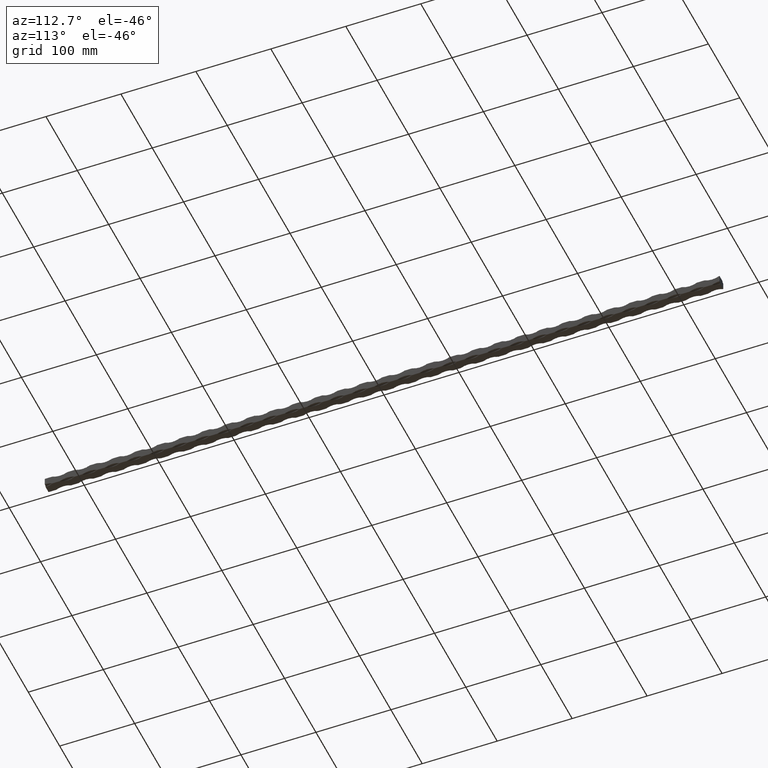
[diagram: clean part render]
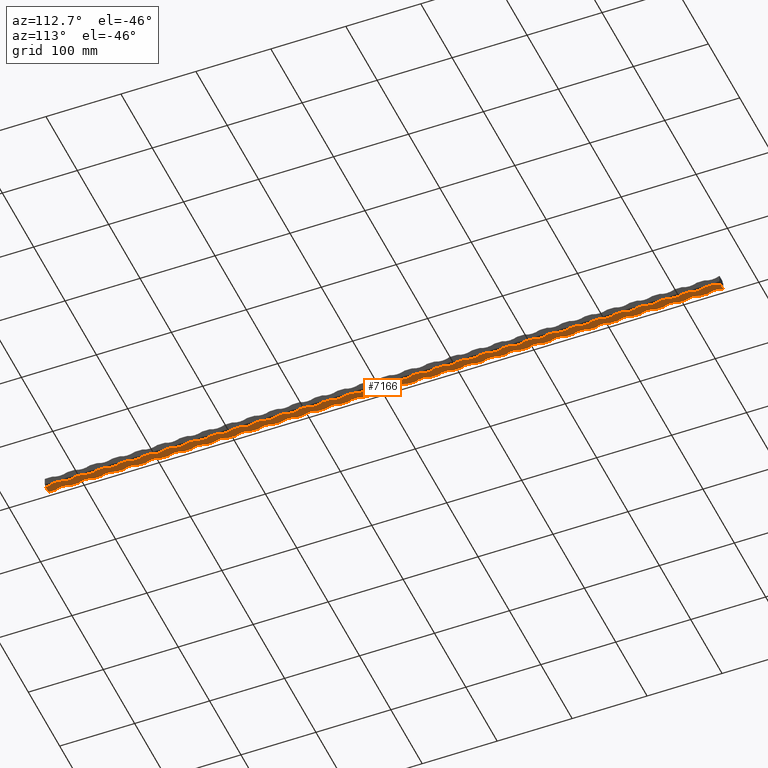
[diagram: same view with one face highlighted and labeled with its STEP entity id]
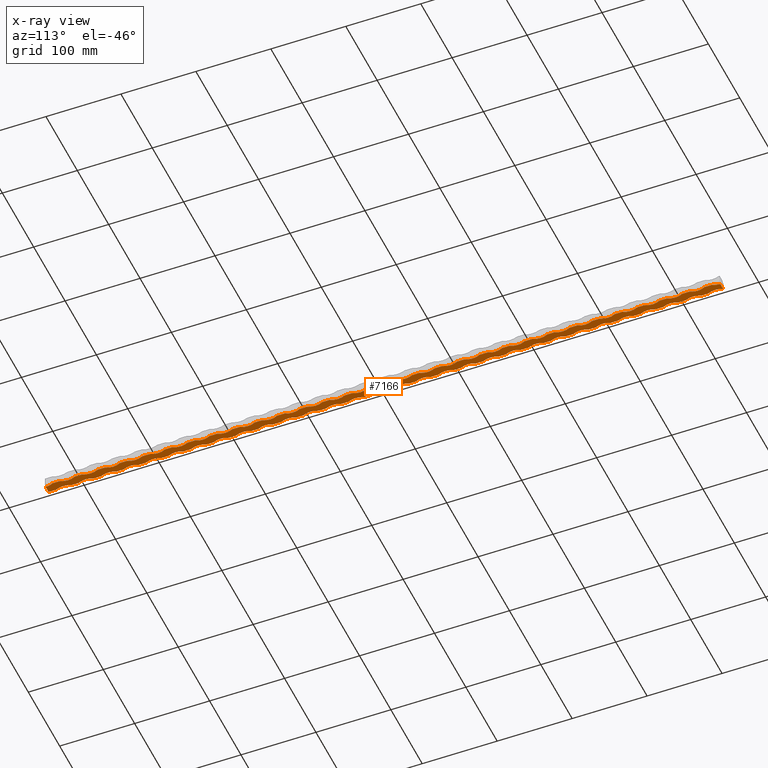
[diagram: x-ray of the same camera — body ghosted, the highlighted face saturated]
A machine part, auxiliary view. The second image highlights one B-rep face of the part: STEP entity #7166.
The next image is the same camera in x-ray: the body ghosted, the highlighted face saturated — about 0% of this face is hidden behind the body in this view.
In plain terms, the highlighted planar face has unit normal (0, 0, 1).
Its self-contained STEP definition (entity closure, byte-faithful):
#9 = VERTEX_POINT ( 'NONE', #8954 ) ;
#32 = DIRECTION ( 'NONE',  ( -1.000000000000000000, 0.000000000000000000, 8.163404592832024105E-17 ) ) ;
#34 = VERTEX_POINT ( 'NONE', #12454 ) ;
#37 = ORIENTED_EDGE ( 'NONE', *, *, #9133, .F. ) ;
#71 = DIRECTION ( 'NONE',  ( -1.000000000000000000, 0.000000000000000000, 8.163404592832022872E-17 ) ) ;
#74 = VERTEX_POINT ( 'NONE', #5712 ) ;
#76 = EDGE_CURVE ( 'NONE', #1450, #2434, #5172, .T. ) ;
#103 = EDGE_CURVE ( 'NONE', #6562, #3145, #3738, .T. ) ;
#108 = EDGE_CURVE ( 'NONE', #6798, #14313, #9835, .T. ) ;
#110 = DIRECTION ( 'NONE',  ( -1.000000000000000000, 3.918434204559370781E-15, 8.163404592832022872E-17 ) ) ;
#111 = CARTESIAN_POINT ( 'NONE',  ( -6.000000000000002665, 0.000000000000000000, -5.999999999999963585 ) ) ;
#122 = CIRCLE ( 'NONE', #10538, 21.25000000000002842 ) ;
#123 = DIRECTION ( 'NONE',  ( -0.000000000000000000, -1.000000000000000000, -0.000000000000000000 ) ) ;
#139 = DIRECTION ( 'NONE',  ( -1.000000000000000000, 0.000000000000000000, 8.163404592832024105E-17 ) ) ;
#155 = DIRECTION ( 'NONE',  ( -0.000000000000000000, -1.000000000000000000, -0.000000000000000000 ) ) ;
#158 = DIRECTION ( 'NONE',  ( 7.748431526029736712E-17, 0.000000000000000000, 1.000000000000000000 ) ) ;
#181 = VECTOR ( 'NONE', #155, 1000.000000000000000 ) ;
#228 = VERTEX_POINT ( 'NONE', #3615 ) ;
#234 = AXIS2_PLACEMENT_3D ( 'NONE', #11602, #3825, #8210 ) ;
#243 = ORIENTED_EDGE ( 'NONE', *, *, #7763, .T. ) ;
#244 = LINE ( 'NONE', #11941, #599 ) ;
#249 = DIRECTION ( 'NONE',  ( -0.000000000000000000, -1.000000000000000000, -0.000000000000000000 ) ) ;
#288 = CARTESIAN_POINT ( 'NONE',  ( -6.000000000000002665, 360.0000000000000568, -5.999999999999932498 ) ) ;
#364 = EDGE_CURVE ( 'NONE', #6249, #7019, #6708, .T. ) ;
#384 = CARTESIAN_POINT ( 'NONE',  ( -24.75000000000002487, 110.0000000000000426, -5.999999999999949374 ) ) ;
#391 = VERTEX_POINT ( 'NONE', #13851 ) ;
#400 = CARTESIAN_POINT ( 'NONE',  ( -24.75000000000002487, 259.9999999999999432, -5.999999999999936051 ) ) ;
#426 = CARTESIAN_POINT ( 'NONE',  ( 5.999999999999999112, 450.0000000000000000, -5.999999999999999112 ) ) ;
#428 = VERTEX_POINT ( 'NONE', #11579 ) ;
#436 = VECTOR ( 'NONE', #4771, 1000.000000000000000 ) ;
#461 = DIRECTION ( 'NONE',  ( -0.000000000000000000, -1.000000000000000000, -0.000000000000000000 ) ) ;
#468 = VERTEX_POINT ( 'NONE', #10610 ) ;
#472 = VERTEX_POINT ( 'NONE', #8453 ) ;
#494 = AXIS2_PLACEMENT_3D ( 'NONE', #14240, #834, #1961 ) ;
#519 = LINE ( 'NONE', #11601, #2084 ) ;
#546 = DIRECTION ( 'NONE',  ( -1.000000000000000000, 2.612289469706247319E-15, 8.163404592832022872E-17 ) ) ;
#551 = CIRCLE ( 'NONE', #6456, 21.25000000000002487 ) ;
#556 = DIRECTION ( 'NONE',  ( -1.000000000000000000, 0.000000000000000000, 8.163404592832024105E-17 ) ) ;
#582 = EDGE_CURVE ( 'NONE', #14335, #11080, #13308, .T. ) ;
#598 = CARTESIAN_POINT ( 'NONE',  ( -6.000000000000000888, 450.0000000000000000, -5.999999999999999112 ) ) ;
#599 = VECTOR ( 'NONE', #14063, 1000.000000000000000 ) ;
#601 = AXIS2_PLACEMENT_3D ( 'NONE', #400, #4795, #12514 ) ;
#603 = LINE ( 'NONE', #8276, #436 ) ;
#622 = AXIS2_PLACEMENT_3D ( 'NONE', #7626, #6568, #943 ) ;
#641 = DIRECTION ( 'NONE',  ( -1.000000000000000000, 5.224578939412494638E-15, 8.163404592832022872E-17 ) ) ;
#653 = EDGE_CURVE ( 'NONE', #9748, #9834, #14181, .T. ) ;
#657 = CARTESIAN_POINT ( 'NONE',  ( -6.000000000000002665, 69.99999999999992895, -5.999999999999998224 ) ) ;
#660 = AXIS2_PLACEMENT_3D ( 'NONE', #2342, #12557, #2392 ) ;
#687 = DIRECTION ( 'NONE',  ( -0.000000000000000000, -1.000000000000000000, -0.000000000000000000 ) ) ;
#691 = CARTESIAN_POINT ( 'NONE',  ( -6.000000000000002665, -329.9999999999999432, -5.999999999999992006 ) ) ;
#706 = DIRECTION ( 'NONE',  ( -0.000000000000000000, -1.000000000000000000, -0.000000000000000000 ) ) ;
#720 = LINE ( 'NONE', #3856, #3859 ) ;
#728 = EDGE_CURVE ( 'NONE', #11430, #7336, #244, .T. ) ;
#744 = VERTEX_POINT ( 'NONE', #805 ) ;
#753 = EDGE_CURVE ( 'NONE', #8941, #9520, #5322, .T. ) ;
#759 = ORIENTED_EDGE ( 'NONE', *, *, #8510, .T. ) ;
#805 = CARTESIAN_POINT ( 'NONE',  ( 5.999999999999998224, 410.0000000000000000, -6.000000000000000000 ) ) ;
#829 = DIRECTION ( 'NONE',  ( -0.000000000000000000, -1.000000000000000000, -0.000000000000000000 ) ) ;
#834 = DIRECTION ( 'NONE',  ( 7.748431526029736712E-17, 0.000000000000000000, 1.000000000000000000 ) ) ;
#844 = AXIS2_PLACEMENT_3D ( 'NONE', #3741, #5035, #4831 ) ;
#853 = CARTESIAN_POINT ( 'NONE',  ( -24.75000000000002487, -310.0000000000000000, -5.999999999999985789 ) ) ;
#855 = CARTESIAN_POINT ( 'NONE',  ( 5.999999999999999112, -109.9999999999999858, -6.000000000000000000 ) ) ;
#859 = EDGE_CURVE ( 'NONE', #13096, #428, #4427, .T. ) ;
#862 = DIRECTION ( 'NONE',  ( 7.748431526029736712E-17, 0.000000000000000000, 1.000000000000000000 ) ) ;
#865 = CIRCLE ( 'NONE', #4497, 21.25000000000002487 ) ;
#896 = CIRCLE ( 'NONE', #13994, 21.25000000000002842 ) ;
#925 = CIRCLE ( 'NONE', #12334, 21.25000000000002842 ) ;
#938 = EDGE_CURVE ( 'NONE', #13096, #6353, #6693, .T. ) ;
#943 = DIRECTION ( 'NONE',  ( -1.000000000000000000, 0.000000000000000000, 8.163404592832024105E-17 ) ) ;
#944 = EDGE_CURVE ( 'NONE', #74, #7177, #10902, .T. ) ;
#960 = VERTEX_POINT ( 'NONE', #9157 ) ;
#968 = CARTESIAN_POINT ( 'NONE',  ( -6.000000000000002665, -320.0000000000000568, -5.999999999999998224 ) ) ;
#977 = CARTESIAN_POINT ( 'NONE',  ( 5.999999999999999112, 450.0000000000000000, -5.999999999999999112 ) ) ;
#984 = VERTEX_POINT ( 'NONE', #10450 ) ;
#1012 = EDGE_CURVE ( 'NONE', #1450, #428, #7902, .T. ) ;
#1031 = EDGE_CURVE ( 'NONE', #14209, #13171, #4089, .T. ) ;
#1037 = EDGE_CURVE ( 'NONE', #13809, #5285, #4962, .T. ) ;
#1040 = EDGE_CURVE ( 'NONE', #10382, #8957, #8789, .T. ) ;
#1079 = DIRECTION ( 'NONE',  ( -0.000000000000000000, -1.000000000000000000, -0.000000000000000000 ) ) ;
#1080 = LINE ( 'NONE', #9742, #9111 ) ;
#1082 = VERTEX_POINT ( 'NONE', #12752 ) ;
#1095 = CARTESIAN_POINT ( 'NONE',  ( -6.000000000000002665, -20.00000000000008882, -5.999999999999998224 ) ) ;
#1104 = VERTEX_POINT ( 'NONE', #11774 ) ;
#1111 = CARTESIAN_POINT ( 'NONE',  ( -6.000000000000000888, 450.0000000000000000, -5.999999999999999112 ) ) ;
#1132 = VERTEX_POINT ( 'NONE', #8389 ) ;
#1144 = CARTESIAN_POINT ( 'NONE',  ( -6.000000000000000888, 450.0000000000000000, -5.999999999999999112 ) ) ;
#1152 = CARTESIAN_POINT ( 'NONE',  ( 5.999999999999999112, 450.0000000000000000, -5.999999999999999112 ) ) ;
#1159 = CARTESIAN_POINT ( 'NONE',  ( -24.75000000000002487, -280.0000000000000000, -5.999999999999983125 ) ) ;
#1162 = DIRECTION ( 'NONE',  ( -0.000000000000000000, -1.000000000000000000, -0.000000000000000000 ) ) ;
#1166 = DIRECTION ( 'NONE',  ( -1.000000000000000000, 5.224578939412494638E-15, 8.163404592832022872E-17 ) ) ;
#1191 = CIRCLE ( 'NONE', #4854, 21.25000000000002487 ) ;
#1192 = CARTESIAN_POINT ( 'NONE',  ( 5.999999999999999112, 450.0000000000000000, -5.999999999999999112 ) ) ;
#1195 = DIRECTION ( 'NONE',  ( -0.000000000000000000, -1.000000000000000000, -0.000000000000000000 ) ) ;
#1225 = VERTEX_POINT ( 'NONE', #9648 ) ;
#1247 = CARTESIAN_POINT ( 'NONE',  ( -6.000000000000002665, 9.999999999999877431, -5.999999999999998224 ) ) ;
#1331 = AXIS2_PLACEMENT_3D ( 'NONE', #11858, #10836, #7505 ) ;
#1340 = CARTESIAN_POINT ( 'NONE',  ( 5.999999999999998224, 49.99999999999998579, -6.000000000000000000 ) ) ;
#1347 = DIRECTION ( 'NONE',  ( -1.000000000000000000, 0.000000000000000000, 8.163404592832024105E-17 ) ) ;
#1358 = CARTESIAN_POINT ( 'NONE',  ( -6.000000000000002665, 99.99999999999994316, -5.999999999999998224 ) ) ;
#1369 = DIRECTION ( 'NONE',  ( 7.748431526029736712E-17, 0.000000000000000000, 1.000000000000000000 ) ) ;
#1373 = EDGE_CURVE ( 'NONE', #6249, #11400, #14001, .T. ) ;
#1394 = VECTOR ( 'NONE', #13339, 1000.000000000000000 ) ;
#1396 = DIRECTION ( 'NONE',  ( -0.000000000000000000, -1.000000000000000000, -0.000000000000000000 ) ) ;
#1398 = EDGE_CURVE ( 'NONE', #3951, #14057, #4409, .T. ) ;
#1415 = CARTESIAN_POINT ( 'NONE',  ( 24.75000000000002487, 360.0000000000000568, -6.000000000000000888 ) ) ;
#1441 = CARTESIAN_POINT ( 'NONE',  ( 5.999999999999999112, 450.0000000000000000, -5.999999999999999112 ) ) ;
#1443 = AXIS2_PLACEMENT_3D ( 'NONE', #10393, #5816, #1347 ) ;
#1450 = VERTEX_POINT ( 'NONE', #3728 ) ;
#1459 = DIRECTION ( 'NONE',  ( 7.748431526029736712E-17, 0.000000000000000000, 1.000000000000000000 ) ) ;
#1478 = EDGE_CURVE ( 'NONE', #10502, #8957, #3339, .T. ) ;
#1500 = EDGE_CURVE ( 'NONE', #12716, #9265, #1080, .T. ) ;
#1507 = VERTEX_POINT ( 'NONE', #7315 ) ;
#1510 = AXIS2_PLACEMENT_3D ( 'NONE', #1415, #8113, #8158 ) ;
#1555 = LINE ( 'NONE', #12119, #13942 ) ;
#1573 = EDGE_CURVE ( 'NONE', #10179, #11799, #6356, .T. ) ;
#1586 = AXIS2_PLACEMENT_3D ( 'NONE', #12931, #11892, #1886 ) ;
#1594 = EDGE_CURVE ( 'NONE', #8745, #4066, #925, .T. ) ;
#1599 = CARTESIAN_POINT ( 'NONE',  ( 24.75000000000002487, 0.000000000000000000, -6.000000000000000888 ) ) ;
#1611 = ORIENTED_EDGE ( 'NONE', *, *, #11304, .T. ) ;
#1627 = DIRECTION ( 'NONE',  ( 7.748431526029736712E-17, 0.000000000000000000, 1.000000000000000000 ) ) ;
#1634 = CARTESIAN_POINT ( 'NONE',  ( 24.75000000000002487, -180.0000000000000000, -6.000000000000000888 ) ) ;
#1680 = DIRECTION ( 'NONE',  ( 7.748431526029736712E-17, 0.000000000000000000, 1.000000000000000000 ) ) ;
#1684 = VERTEX_POINT ( 'NONE', #13465 ) ;
#1707 = AXIS2_PLACEMENT_3D ( 'NONE', #10175, #8027, #4626 ) ;
#1755 = EDGE_CURVE ( 'NONE', #228, #4111, #2667, .T. ) ;
#1774 = ORIENTED_EDGE ( 'NONE', *, *, #6472, .T. ) ;
#1782 = EDGE_CURVE ( 'NONE', #5155, #7004, #2483, .T. ) ;
#1796 = ORIENTED_EDGE ( 'NONE', *, *, #11306, .T. ) ;
#1801 = DIRECTION ( 'NONE',  ( 7.748431526029736712E-17, 0.000000000000000000, 1.000000000000000000 ) ) ;
#1816 = ORIENTED_EDGE ( 'NONE', *, *, #859, .F. ) ;
#1821 = AXIS2_PLACEMENT_3D ( 'NONE', #2645, #10291, #7130 ) ;
#1858 = ORIENTED_EDGE ( 'NONE', *, *, #14370, .T. ) ;
#1886 = DIRECTION ( 'NONE',  ( -1.000000000000000000, 5.224578939412494638E-15, 8.163404592832022872E-17 ) ) ;
#1905 = DIRECTION ( 'NONE',  ( 7.748431526029736712E-17, 0.000000000000000000, 1.000000000000000000 ) ) ;
#1931 = DIRECTION ( 'NONE',  ( -1.000000000000000000, -2.612289469706247319E-15, 8.163404592832022872E-17 ) ) ;
#1936 = AXIS2_PLACEMENT_3D ( 'NONE', #853, #4144, #1931 ) ;
#1961 = DIRECTION ( 'NONE',  ( -1.000000000000000000, 2.612289469706247714E-14, 8.163404592832024105E-17 ) ) ;
#2034 = DIRECTION ( 'NONE',  ( 7.748431526029736712E-17, 0.000000000000000000, 1.000000000000000000 ) ) ;
#2035 = VECTOR ( 'NONE', #3659, 1000.000000000000000 ) ;
#2057 = LINE ( 'NONE', #1111, #13019 ) ;
#2065 = CARTESIAN_POINT ( 'NONE',  ( 5.999999999999998224, 200.0000000000000000, -6.000000000000000000 ) ) ;
#2071 = DIRECTION ( 'NONE',  ( -0.000000000000000000, -1.000000000000000000, -0.000000000000000000 ) ) ;
#2083 = AXIS2_PLACEMENT_3D ( 'NONE', #13567, #5924, #2550 ) ;
#2084 = VECTOR ( 'NONE', #14008, 1000.000000000000000 ) ;
#2097 = ORIENTED_EDGE ( 'NONE', *, *, #13211, .T. ) ;
#2111 = CARTESIAN_POINT ( 'NONE',  ( 5.999999999999999112, -139.9999999999999716, -6.000000000000000000 ) ) ;
#2113 = CARTESIAN_POINT ( 'NONE',  ( -24.75000000000002487, -10.00000000000000888, -5.999999999999959144 ) ) ;
#2114 = CARTESIAN_POINT ( 'NONE',  ( -24.75000000000002487, -190.0000000000000000, -5.999999999999975131 ) ) ;
#2135 = LINE ( 'NONE', #426, #4752 ) ;
#2159 = CARTESIAN_POINT ( 'NONE',  ( -6.000000000000002665, -149.9999999999999716, -5.999999999999976907 ) ) ;
#2168 = ORIENTED_EDGE ( 'NONE', *, *, #7413, .F. ) ;
#2169 = LINE ( 'NONE', #7801, #14185 ) ;
#2170 = EDGE_CURVE ( 'NONE', #3503, #9265, #8598, .T. ) ;
#2180 = EDGE_CURVE ( 'NONE', #4740, #9520, #2830, .T. ) ;
#2187 = VERTEX_POINT ( 'NONE', #10953 ) ;
#2191 = DIRECTION ( 'NONE',  ( -0.000000000000000000, -1.000000000000000000, -0.000000000000000000 ) ) ;
#2216 = CARTESIAN_POINT ( 'NONE',  ( -6.000000000000000888, 450.0000000000000000, -5.999999999999999112 ) ) ;
#2233 = CARTESIAN_POINT ( 'NONE',  ( 24.75000000000002487, -390.0000000000000000, -6.000000000000000888 ) ) ;
#2248 = AXIS2_PLACEMENT_3D ( 'NONE', #11275, #11232, #14465 ) ;
#2259 = VECTOR ( 'NONE', #2071, 1000.000000000000000 ) ;
#2283 = DIRECTION ( 'NONE',  ( 7.748431526029736712E-17, 0.000000000000000000, 1.000000000000000000 ) ) ;
#2284 = DIRECTION ( 'NONE',  ( 7.748431526029736712E-17, 0.000000000000000000, 1.000000000000000000 ) ) ;
#2288 = AXIS2_PLACEMENT_3D ( 'NONE', #8657, #13160, #14288 ) ;
#2292 = ORIENTED_EDGE ( 'NONE', *, *, #7293, .F. ) ;
#2339 = VECTOR ( 'NONE', #9698, 1000.000000000000000 ) ;
#2342 = CARTESIAN_POINT ( 'NONE',  ( -24.75000000000002487, -159.9999999999999716, -5.999999999999972466 ) ) ;
#2361 = ORIENTED_EDGE ( 'NONE', *, *, #13833, .F. ) ;
#2392 = DIRECTION ( 'NONE',  ( -1.000000000000000000, 3.918434204559370781E-15, 8.163404592832022872E-17 ) ) ;
#2412 = CARTESIAN_POINT ( 'NONE',  ( -6.000000000000002665, -380.0000000000000000, -5.999999999999998224 ) ) ;
#2434 = VERTEX_POINT ( 'NONE', #4039 ) ;
#2472 = ORIENTED_EDGE ( 'NONE', *, *, #1782, .T. ) ;
#2483 = LINE ( 'NONE', #13515, #11048 ) ;
#2501 = CIRCLE ( 'NONE', #4481, 21.25000000000002487 ) ;
#2519 = DIRECTION ( 'NONE',  ( -1.000000000000000000, 0.000000000000000000, 8.163404592832022872E-17 ) ) ;
#2520 = CIRCLE ( 'NONE', #6794, 21.25000000000002487 ) ;
#2525 = DIRECTION ( 'NONE',  ( -0.000000000000000000, -1.000000000000000000, -0.000000000000000000 ) ) ;
#2536 = ORIENTED_EDGE ( 'NONE', *, *, #10067, .T. ) ;
#2550 = DIRECTION ( 'NONE',  ( -1.000000000000000000, 0.000000000000000000, 8.163404592832024105E-17 ) ) ;
#2591 = CARTESIAN_POINT ( 'NONE',  ( 5.999999999999999112, -169.9999999999999716, -6.000000000000000000 ) ) ;
#2645 = CARTESIAN_POINT ( 'NONE',  ( -24.75000000000002487, 229.9999999999999147, -5.999999999999938716 ) ) ;
#2663 = ORIENTED_EDGE ( 'NONE', *, *, #12250, .F. ) ;
#2667 = CIRCLE ( 'NONE', #1443, 21.25000000000002487 ) ;
#2669 = VECTOR ( 'NONE', #8235, 1000.000000000000000 ) ;
#2700 = LINE ( 'NONE', #5286, #10189 ) ;
#2728 = EDGE_CURVE ( 'NONE', #13839, #7336, #5975, .T. ) ;
#2740 = ORIENTED_EDGE ( 'NONE', *, *, #7867, .T. ) ;
#2743 = ORIENTED_EDGE ( 'NONE', *, *, #5997, .T. ) ;
#2785 = LINE ( 'NONE', #9046, #11008 ) ;
#2823 = ORIENTED_EDGE ( 'NONE', *, *, #4493, .T. ) ;
#2830 = CIRCLE ( 'NONE', #3214, 21.25000000000002842 ) ;
#2876 = CARTESIAN_POINT ( 'NONE',  ( 5.999999999999999112, 450.0000000000000000, -5.999999999999999112 ) ) ;
#2901 = DIRECTION ( 'NONE',  ( -0.000000000000000000, -1.000000000000000000, -0.000000000000000000 ) ) ;
#2902 = VERTEX_POINT ( 'NONE', #10525 ) ;
#2948 = CARTESIAN_POINT ( 'NONE',  ( -6.000000000000002665, 269.9999999999999432, -5.999999999999940492 ) ) ;
#2977 = VERTEX_POINT ( 'NONE', #3735 ) ;
#3021 = ORIENTED_EDGE ( 'NONE', *, *, #1373, .T. ) ;
#3034 = DIRECTION ( 'NONE',  ( 7.748431526029736712E-17, 0.000000000000000000, 1.000000000000000000 ) ) ;
#3035 = VERTEX_POINT ( 'NONE', #855 ) ;
#3056 = CARTESIAN_POINT ( 'NONE',  ( -6.000000000000002665, -290.0000000000001137, -5.999999999999998224 ) ) ;
#3072 = EDGE_CURVE ( 'NONE', #1104, #11229, #9601, .T. ) ;
#3073 = CARTESIAN_POINT ( 'NONE',  ( 5.999999999999998224, 320.0000000000000000, -6.000000000000000000 ) ) ;
#3100 = AXIS2_PLACEMENT_3D ( 'NONE', #13731, #4737, #11576 ) ;
#3127 = ORIENTED_EDGE ( 'NONE', *, *, #10082, .F. ) ;
#3145 = VERTEX_POINT ( 'NONE', #6658 ) ;
#3150 = VERTEX_POINT ( 'NONE', #14436 ) ;
#3151 = CARTESIAN_POINT ( 'NONE',  ( 5.999999999999998224, -159.9999999999999716, -6.000000000000000000 ) ) ;
#3178 = EDGE_CURVE ( 'NONE', #391, #7019, #13073, .T. ) ;
#3185 = DIRECTION ( 'NONE',  ( -0.000000000000000000, -1.000000000000000000, -0.000000000000000000 ) ) ;
#3207 = ORIENTED_EDGE ( 'NONE', *, *, #4491, .T. ) ;
#3214 = AXIS2_PLACEMENT_3D ( 'NONE', #5397, #14272, #12268 ) ;
#3221 = DIRECTION ( 'NONE',  ( 7.748431526029736712E-17, 0.000000000000000000, 1.000000000000000000 ) ) ;
#3232 = VECTOR ( 'NONE', #461, 1000.000000000000000 ) ;
#3253 = EDGE_CURVE ( 'NONE', #4255, #1225, #11730, .T. ) ;
#3309 = CIRCLE ( 'NONE', #1510, 21.25000000000002487 ) ;
#3312 = ORIENTED_EDGE ( 'NONE', *, *, #12416, .T. ) ;
#3318 = AXIS2_PLACEMENT_3D ( 'NONE', #7669, #9022, #6901 ) ;
#3339 = LINE ( 'NONE', #11825, #4072 ) ;
#3343 = CIRCLE ( 'NONE', #5245, 21.25000000000002487 ) ;
#3362 = EDGE_CURVE ( 'NONE', #10461, #2187, #3309, .T. ) ;
#3406 = VERTEX_POINT ( 'NONE', #9261 ) ;
#3422 = CARTESIAN_POINT ( 'NONE',  ( -6.000000000000002665, -80.00000000000008527, -5.999999999999998224 ) ) ;
#3426 = CARTESIAN_POINT ( 'NONE',  ( -6.000000000000000888, 450.0000000000000000, -5.999999999999999112 ) ) ;
#3436 = LINE ( 'NONE', #598, #14431 ) ;
#3448 = DIRECTION ( 'NONE',  ( 7.748431526029736712E-17, 0.000000000000000000, 1.000000000000000000 ) ) ;
#3451 = DIRECTION ( 'NONE',  ( -1.000000000000000000, 0.000000000000000000, 8.163404592832024105E-17 ) ) ;
#3459 = CARTESIAN_POINT ( 'NONE',  ( 5.999999999999999112, 450.0000000000000000, -5.999999999999999112 ) ) ;
#3464 = LINE ( 'NONE', #7660, #7661 ) ;
#3503 = VERTEX_POINT ( 'NONE', #10654 ) ;
#3517 = VECTOR ( 'NONE', #13703, 1000.000000000000000 ) ;
#3543 = DIRECTION ( 'NONE',  ( -0.000000000000000000, -1.000000000000000000, -0.000000000000000000 ) ) ;
#3549 = VECTOR ( 'NONE', #4847, 1000.000000000000000 ) ;
#3564 = EDGE_CURVE ( 'NONE', #9748, #472, #14454, .T. ) ;
#3600 = AXIS2_PLACEMENT_3D ( 'NONE', #10759, #6373, #14184 ) ;
#3604 = CARTESIAN_POINT ( 'NONE',  ( -6.000000000000000888, 450.0000000000000000, -5.999999999999999112 ) ) ;
#3613 = CARTESIAN_POINT ( 'NONE',  ( 5.999999999999999112, 440.0000000000000000, -6.000000000000000000 ) ) ;
#3615 = CARTESIAN_POINT ( 'NONE',  ( 5.999999999999999112, 220.0000000000000284, -6.000000000000000000 ) ) ;
#3635 = EDGE_CURVE ( 'NONE', #6701, #13118, #12539, .T. ) ;
#3659 = DIRECTION ( 'NONE',  ( -0.000000000000000000, -1.000000000000000000, -0.000000000000000000 ) ) ;
#3663 = ORIENTED_EDGE ( 'NONE', *, *, #6108, .T. ) ;
#3718 = EDGE_CURVE ( 'NONE', #9944, #1684, #11880, .T. ) ;
#3725 = CIRCLE ( 'NONE', #3318, 21.25000000000002487 ) ;
#3728 = CARTESIAN_POINT ( 'NONE',  ( -6.000000000000002665, 219.9999999999998010, -5.999999999999998224 ) ) ;
#3735 = CARTESIAN_POINT ( 'NONE',  ( 5.999999999999998224, 110.0000000000000426, -6.000000000000000000 ) ) ;
#3736 = ORIENTED_EDGE ( 'NONE', *, *, #938, .T. ) ;
#3738 = LINE ( 'NONE', #9139, #7067 ) ;
#3741 = CARTESIAN_POINT ( 'NONE',  ( 24.75000000000002487, 450.0000000000000000, -6.000000000000000888 ) ) ;
#3748 = EDGE_CURVE ( 'NONE', #744, #5551, #11348, .T. ) ;
#3814 = DIRECTION ( 'NONE',  ( -0.000000000000000000, -1.000000000000000000, -0.000000000000000000 ) ) ;
#3825 = DIRECTION ( 'NONE',  ( 7.748431526029736712E-17, 0.000000000000000000, 1.000000000000000000 ) ) ;
#3847 = ORIENTED_EDGE ( 'NONE', *, *, #3253, .T. ) ;
#3852 = EDGE_CURVE ( 'NONE', #5285, #5155, #5434, .T. ) ;
#3856 = CARTESIAN_POINT ( 'NONE',  ( 5.999999999999999112, 450.0000000000000000, -5.999999999999999112 ) ) ;
#3859 = VECTOR ( 'NONE', #11718, 1000.000000000000000 ) ;
#3860 = CARTESIAN_POINT ( 'NONE',  ( -24.75000000000002487, 320.0000000000000000, -5.999999999999930722 ) ) ;
#3863 = VERTEX_POINT ( 'NONE', #13865 ) ;
#3885 = DIRECTION ( 'NONE',  ( -1.000000000000000000, 0.000000000000000000, 8.163404592832022872E-17 ) ) ;
#3906 = ORIENTED_EDGE ( 'NONE', *, *, #8123, .T. ) ;
#3908 = DIRECTION ( 'NONE',  ( -1.000000000000000000, 0.000000000000000000, 8.163404592832024105E-17 ) ) ;
#3931 = CARTESIAN_POINT ( 'NONE',  ( 24.75000000000002487, 300.0000000000000000, -6.000000000000000888 ) ) ;
#3938 = ORIENTED_EDGE ( 'NONE', *, *, #1478, .F. ) ;
#3951 = VERTEX_POINT ( 'NONE', #657 ) ;
#3968 = EDGE_CURVE ( 'NONE', #2187, #3150, #519, .T. ) ;
#3986 = CARTESIAN_POINT ( 'NONE',  ( -6.000000000000002665, -90.00000000000002842, -5.999999999999971578 ) ) ;
#3999 = CARTESIAN_POINT ( 'NONE',  ( -6.000000000000000888, -450.0000000000000000, -5.999999999999999112 ) ) ;
#4000 = DIRECTION ( 'NONE',  ( -1.000000000000000000, 3.918434204559370781E-15, 8.163404592832022872E-17 ) ) ;
#4039 = CARTESIAN_POINT ( 'NONE',  ( -6.000000000000002665, 210.0000000000000284, -5.999999999999945821 ) ) ;
#4066 = VERTEX_POINT ( 'NONE', #5215 ) ;
#4068 = CARTESIAN_POINT ( 'NONE',  ( -6.000000000000002665, 399.9999999999997726, -5.999999999999998224 ) ) ;
#4072 = VECTOR ( 'NONE', #7431, 1000.000000000000000 ) ;
#4089 = CIRCLE ( 'NONE', #3100, 21.25000000000002487 ) ;
#4111 = VERTEX_POINT ( 'NONE', #2065 ) ;
#4121 = EDGE_CURVE ( 'NONE', #5999, #1507, #3464, .T. ) ;
#4134 = AXIS2_PLACEMENT_3D ( 'NONE', #6633, #2284, #12279 ) ;
#4144 = DIRECTION ( 'NONE',  ( 7.748431526029736712E-17, 0.000000000000000000, 1.000000000000000000 ) ) ;
#4191 = DIRECTION ( 'NONE',  ( -1.000000000000000000, 0.000000000000000000, 8.163404592832024105E-17 ) ) ;
#4211 = EDGE_CURVE ( 'NONE', #12763, #3145, #6124, .T. ) ;
#4243 = ORIENTED_EDGE ( 'NONE', *, *, #10296, .F. ) ;
#4255 = VERTEX_POINT ( 'NONE', #7771 ) ;
#4278 = LINE ( 'NONE', #6722, #11096 ) ;
#4300 = EDGE_CURVE ( 'NONE', #7407, #3406, #865, .T. ) ;
#4369 = LINE ( 'NONE', #11173, #1394 ) ;
#4380 = DIRECTION ( 'NONE',  ( 0.000000000000000000, 0.000000000000000000, 1.000000000000000000 ) ) ;
#4395 = VECTOR ( 'NONE', #13655, 1000.000000000000000 ) ;
#4409 = CIRCLE ( 'NONE', #234, 21.25000000000002842 ) ;
#4427 = LINE ( 'NONE', #3426, #8261 ) ;
#4429 = CARTESIAN_POINT ( 'NONE',  ( 24.75000000000002487, 180.0000000000000000, -6.000000000000000888 ) ) ;
#4468 = CARTESIAN_POINT ( 'NONE',  ( -24.75000000000002487, -250.0000000000000000, -5.999999999999980460 ) ) ;
#4474 = EDGE_CURVE ( 'NONE', #13398, #11829, #11165, .T. ) ;
#4481 = AXIS2_PLACEMENT_3D ( 'NONE', #6629, #13411, #139 ) ;
#4491 = EDGE_CURVE ( 'NONE', #1225, #4967, #8371, .T. ) ;
#4493 = EDGE_CURVE ( 'NONE', #7177, #984, #1555, .T. ) ;
#4497 = AXIS2_PLACEMENT_3D ( 'NONE', #6641, #10135, #3451 ) ;
#4506 = EDGE_CURVE ( 'NONE', #7004, #11637, #9935, .T. ) ;
#4550 = ORIENTED_EDGE ( 'NONE', *, *, #7212, .T. ) ;
#4553 = DIRECTION ( 'NONE',  ( -1.000000000000000000, 0.000000000000000000, 8.163404592832024105E-17 ) ) ;
#4564 = EDGE_CURVE ( 'NONE', #8107, #4949, #12723, .T. ) ;
#4572 = ORIENTED_EDGE ( 'NONE', *, *, #1755, .T. ) ;
#4578 = DIRECTION ( 'NONE',  ( 7.748431526029736712E-17, 0.000000000000000000, 1.000000000000000000 ) ) ;
#4605 = VERTEX_POINT ( 'NONE', #5271 ) ;
#4626 = DIRECTION ( 'NONE',  ( -1.000000000000000000, 0.000000000000000000, 8.163404592832024105E-17 ) ) ;
#4631 = ORIENTED_EDGE ( 'NONE', *, *, #3718, .T. ) ;
#4634 = CARTESIAN_POINT ( 'NONE',  ( 5.999999999999999112, 450.0000000000000000, -5.999999999999999112 ) ) ;
#4655 = DIRECTION ( 'NONE',  ( -1.000000000000000000, -2.612289469706247319E-15, 8.163404592832022872E-17 ) ) ;
#4661 = EDGE_CURVE ( 'NONE', #13839, #9426, #4718, .T. ) ;
#4696 = ORIENTED_EDGE ( 'NONE', *, *, #10795, .T. ) ;
#4697 = VERTEX_POINT ( 'NONE', #10097 ) ;
#4699 = CARTESIAN_POINT ( 'NONE',  ( -6.000000000000002665, 339.9999999999998863, -5.999999999999998224 ) ) ;
#4707 = VERTEX_POINT ( 'NONE', #14395 ) ;
#4718 = LINE ( 'NONE', #2216, #9064 ) ;
#4737 = DIRECTION ( 'NONE',  ( 7.748431526029736712E-17, 0.000000000000000000, 1.000000000000000000 ) ) ;
#4740 = VERTEX_POINT ( 'NONE', #3422 ) ;
#4752 = VECTOR ( 'NONE', #706, 1000.000000000000000 ) ;
#4771 = DIRECTION ( 'NONE',  ( -0.000000000000000000, -1.000000000000000000, -0.000000000000000000 ) ) ;
#4792 = AXIS2_PLACEMENT_3D ( 'NONE', #3931, #8267, #12639 ) ;
#4795 = DIRECTION ( 'NONE',  ( 7.748431526029736712E-17, 0.000000000000000000, 1.000000000000000000 ) ) ;
#4831 = DIRECTION ( 'NONE',  ( -1.000000000000000000, 0.000000000000000000, 8.163404592832024105E-17 ) ) ;
#4847 = DIRECTION ( 'NONE',  ( -0.000000000000000000, -1.000000000000000000, -0.000000000000000000 ) ) ;
#4850 = CARTESIAN_POINT ( 'NONE',  ( -6.000000000000000888, 450.0000000000000000, -5.999999999999999112 ) ) ;
#4854 = AXIS2_PLACEMENT_3D ( 'NONE', #6447, #12005, #4191 ) ;
#4865 = EDGE_CURVE ( 'NONE', #10220, #5458, #12897, .T. ) ;
#4888 = CARTESIAN_POINT ( 'NONE',  ( -6.000000000000002665, -240.0000000000000000, -5.999999999999984901 ) ) ;
#4891 = DIRECTION ( 'NONE',  ( -0.000000000000000000, -1.000000000000000000, -0.000000000000000000 ) ) ;
#4898 = CARTESIAN_POINT ( 'NONE',  ( -6.000000000000002665, -140.0000000000000568, -5.999999999999998224 ) ) ;
#4935 = ORIENTED_EDGE ( 'NONE', *, *, #4506, .T. ) ;
#4949 = VERTEX_POINT ( 'NONE', #11593 ) ;
#4962 = LINE ( 'NONE', #13681, #3549 ) ;
#4963 = CARTESIAN_POINT ( 'NONE',  ( -24.75000000000002487, 49.99999999999998579, -5.999999999999953815 ) ) ;
#4967 = VERTEX_POINT ( 'NONE', #6132 ) ;
#5035 = DIRECTION ( 'NONE',  ( 7.748431526029736712E-17, 0.000000000000000000, 1.000000000000000000 ) ) ;
#5115 = ORIENTED_EDGE ( 'NONE', *, *, #753, .F. ) ;
#5124 = CARTESIAN_POINT ( 'NONE',  ( -24.75000000000002487, 139.9999999999999716, -5.999999999999946709 ) ) ;
#5148 = DIRECTION ( 'NONE',  ( 7.748431526029736712E-17, 0.000000000000000000, 1.000000000000000000 ) ) ;
#5155 = VERTEX_POINT ( 'NONE', #6382 ) ;
#5156 = CARTESIAN_POINT ( 'NONE',  ( 5.999999999999999112, -19.99999999999996092, -6.000000000000000000 ) ) ;
#5172 = LINE ( 'NONE', #5869, #12785 ) ;
#5183 = ORIENTED_EDGE ( 'NONE', *, *, #7314, .F. ) ;
#5207 = LINE ( 'NONE', #9167, #2035 ) ;
#5215 = CARTESIAN_POINT ( 'NONE',  ( -6.000000000000002665, -120.0000000000000000, -5.999999999999974243 ) ) ;
#5245 = AXIS2_PLACEMENT_3D ( 'NONE', #7464, #862, #13082 ) ;
#5271 = CARTESIAN_POINT ( 'NONE',  ( 5.999999999999998224, -430.0000000000000000, -6.000000000000000000 ) ) ;
#5285 = VERTEX_POINT ( 'NONE', #10042 ) ;
#5286 = CARTESIAN_POINT ( 'NONE',  ( -6.000000000000000888, 450.0000000000000000, -5.999999999999999112 ) ) ;
#5292 = CARTESIAN_POINT ( 'NONE',  ( -6.000000000000002665, -360.0000000000000000, -5.999999999999994671 ) ) ;
#5293 = VECTOR ( 'NONE', #7952, 1000.000000000000000 ) ;
#5300 = DIRECTION ( 'NONE',  ( -0.000000000000000000, -1.000000000000000000, -0.000000000000000000 ) ) ;
#5322 = LINE ( 'NONE', #9567, #13295 ) ;
#5326 = DIRECTION ( 'NONE',  ( -1.000000000000000000, 0.000000000000000000, 8.163404592832024105E-17 ) ) ;
#5377 = CARTESIAN_POINT ( 'NONE',  ( -6.000000000000000888, 450.0000000000000000, -5.999999999999999112 ) ) ;
#5379 = VECTOR ( 'NONE', #9276, 1000.000000000000000 ) ;
#5392 = LINE ( 'NONE', #10187, #13179 ) ;
#5395 = CARTESIAN_POINT ( 'NONE',  ( 5.999999999999999112, 399.9999999999999432, -6.000000000000000000 ) ) ;
#5397 = CARTESIAN_POINT ( 'NONE',  ( -24.75000000000002487, -70.00000000000000000, -5.999999999999964473 ) ) ;
#5399 = CARTESIAN_POINT ( 'NONE',  ( 5.999999999999998224, 19.99999999999996092, -6.000000000000000000 ) ) ;
#5405 = DIRECTION ( 'NONE',  ( -0.000000000000000000, -1.000000000000000000, -0.000000000000000000 ) ) ;
#5412 = DIRECTION ( 'NONE',  ( -0.000000000000000000, -1.000000000000000000, -0.000000000000000000 ) ) ;
#5418 = ORIENTED_EDGE ( 'NONE', *, *, #12064, .T. ) ;
#5421 = CARTESIAN_POINT ( 'NONE',  ( 24.75000000000002487, 149.9999999999999716, -6.000000000000000888 ) ) ;
#5434 = CIRCLE ( 'NONE', #4792, 21.25000000000002487 ) ;
#5458 = VERTEX_POINT ( 'NONE', #5292 ) ;
#5466 = CARTESIAN_POINT ( 'NONE',  ( 5.999999999999998224, 80.00000000000001421, -6.000000000000000000 ) ) ;
#5468 = ORIENTED_EDGE ( 'NONE', *, *, #582, .F. ) ;
#5489 = AXIS2_PLACEMENT_3D ( 'NONE', #9958, #13353, #4553 ) ;
#5518 = CARTESIAN_POINT ( 'NONE',  ( 5.999999999999999112, 130.0000000000000568, -6.000000000000000000 ) ) ;
#5530 = VERTEX_POINT ( 'NONE', #10950 ) ;
#5551 = VERTEX_POINT ( 'NONE', #5395 ) ;
#5563 = DIRECTION ( 'NONE',  ( -1.000000000000000000, 0.000000000000000000, 8.163404592832024105E-17 ) ) ;
#5576 = CARTESIAN_POINT ( 'NONE',  ( -6.000000000000002665, 129.9999999999998295, -5.999999999999998224 ) ) ;
#5653 = ORIENTED_EDGE ( 'NONE', *, *, #12585, .F. ) ;
#5660 = ORIENTED_EDGE ( 'NONE', *, *, #6114, .T. ) ;
#5669 = ORIENTED_EDGE ( 'NONE', *, *, #3178, .T. ) ;
#5700 = DIRECTION ( 'NONE',  ( -1.000000000000000000, 0.000000000000000000, 8.163404592832024105E-17 ) ) ;
#5704 = ORIENTED_EDGE ( 'NONE', *, *, #13392, .T. ) ;
#5705 = VERTEX_POINT ( 'NONE', #6835 ) ;
#5708 = LINE ( 'NONE', #11588, #3232 ) ;
#5712 = CARTESIAN_POINT ( 'NONE',  ( 5.999999999999999112, -199.9999999999999716, -6.000000000000000000 ) ) ;
#5714 = CARTESIAN_POINT ( 'NONE',  ( -24.75000000000002487, 19.99999999999996092, -5.999999999999956479 ) ) ;
#5754 = DIRECTION ( 'NONE',  ( -0.000000000000000000, -1.000000000000000000, -0.000000000000000000 ) ) ;
#5786 = VERTEX_POINT ( 'NONE', #1358 ) ;
#5813 = CARTESIAN_POINT ( 'NONE',  ( -6.000000000000000888, 450.0000000000000000, -5.999999999999999112 ) ) ;
#5816 = DIRECTION ( 'NONE',  ( 7.748431526029736712E-17, 0.000000000000000000, 1.000000000000000000 ) ) ;
#5867 = LINE ( 'NONE', #12397, #13310 ) ;
#5869 = CARTESIAN_POINT ( 'NONE',  ( -6.000000000000000888, 450.0000000000000000, -5.999999999999999112 ) ) ;
#5924 = DIRECTION ( 'NONE',  ( 7.748431526029736712E-17, 0.000000000000000000, 1.000000000000000000 ) ) ;
#5925 = EDGE_CURVE ( 'NONE', #11829, #2977, #12348, .T. ) ;
#5928 = CARTESIAN_POINT ( 'NONE',  ( 5.999999999999999112, 450.0000000000000000, -5.999999999999999112 ) ) ;
#5962 = VERTEX_POINT ( 'NONE', #9885 ) ;
#5967 = AXIS2_PLACEMENT_3D ( 'NONE', #4963, #1627, #10516 ) ;
#5968 = CIRCLE ( 'NONE', #12599, 21.25000000000002842 ) ;
#5975 = CIRCLE ( 'NONE', #9676, 21.25000000000002842 ) ;
#5997 = EDGE_CURVE ( 'NONE', #10220, #11080, #7656, .T. ) ;
#5999 = VERTEX_POINT ( 'NONE', #14374 ) ;
#6000 = CARTESIAN_POINT ( 'NONE',  ( 5.999999999999999112, 370.0000000000000568, -6.000000000000000000 ) ) ;
#6015 = DIRECTION ( 'NONE',  ( -1.000000000000000000, 1.959217102279685391E-15, 8.163404592832022872E-17 ) ) ;
#6017 = ORIENTED_EDGE ( 'NONE', *, *, #1037, .T. ) ;
#6035 = CIRCLE ( 'NONE', #12491, 21.25000000000002487 ) ;
#6091 = VECTOR ( 'NONE', #829, 1000.000000000000000 ) ;
#6108 = EDGE_CURVE ( 'NONE', #9506, #6318, #13926, .T. ) ;
#6109 = ORIENTED_EDGE ( 'NONE', *, *, #9722, .T. ) ;
#6114 = EDGE_CURVE ( 'NONE', #13171, #1104, #9386, .T. ) ;
#6118 = EDGE_CURVE ( 'NONE', #468, #9426, #8179, .T. ) ;
#6124 = CIRCLE ( 'NONE', #2248, 21.25000000000002842 ) ;
#6126 = CARTESIAN_POINT ( 'NONE',  ( -24.75000000000002487, 410.0000000000000000, -5.999999999999922728 ) ) ;
#6131 = ORIENTED_EDGE ( 'NONE', *, *, #8596, .T. ) ;
#6132 = CARTESIAN_POINT ( 'NONE',  ( 5.999999999999999112, 159.9999999999999716, -6.000000000000000000 ) ) ;
#6137 = ORIENTED_EDGE ( 'NONE', *, *, #8319, .T. ) ;
#6144 = LINE ( 'NONE', #3459, #181 ) ;
#6148 = AXIS2_PLACEMENT_3D ( 'NONE', #2233, #4578, #32 ) ;
#6153 = ORIENTED_EDGE ( 'NONE', *, *, #3362, .T. ) ;
#6165 = CARTESIAN_POINT ( 'NONE',  ( -24.75000000000002487, 440.0000000000000000, -5.999999999999920064 ) ) ;
#6174 = LINE ( 'NONE', #8270, #4395 ) ;
#6209 = EDGE_CURVE ( 'NONE', #5786, #472, #11150, .T. ) ;
#6227 = ORIENTED_EDGE ( 'NONE', *, *, #14011, .F. ) ;
#6249 = VERTEX_POINT ( 'NONE', #10441 ) ;
#6266 = CIRCLE ( 'NONE', #11010, 21.25000000000002842 ) ;
#6318 = VERTEX_POINT ( 'NONE', #14220 ) ;
#6327 = DIRECTION ( 'NONE',  ( -1.000000000000000000, -0.000000000000000000, -0.000000000000000000 ) ) ;
#6333 = CARTESIAN_POINT ( 'NONE',  ( -24.75000000000002487, -430.0000000000000000, -5.999999999999995559 ) ) ;
#6348 = CARTESIAN_POINT ( 'NONE',  ( -6.000000000000002665, 180.0000000000000000, -5.999999999999948486 ) ) ;
#6353 = VERTEX_POINT ( 'NONE', #2948 ) ;
#6356 = CIRCLE ( 'NONE', #1331, 21.25000000000002487 ) ;
#6372 = VERTEX_POINT ( 'NONE', #8710 ) ;
#6373 = DIRECTION ( 'NONE',  ( 7.748431526029736712E-17, 0.000000000000000000, 1.000000000000000000 ) ) ;
#6382 = CARTESIAN_POINT ( 'NONE',  ( 5.999999999999998224, 290.0000000000000000, -6.000000000000000000 ) ) ;
#6447 = CARTESIAN_POINT ( 'NONE',  ( 24.75000000000002487, 239.9999999999999432, -6.000000000000000888 ) ) ;
#6453 = VERTEX_POINT ( 'NONE', #8939 ) ;
#6456 = AXIS2_PLACEMENT_3D ( 'NONE', #14249, #7629, #14099 ) ;
#6472 = EDGE_CURVE ( 'NONE', #984, #4707, #10988, .T. ) ;
#6480 = CARTESIAN_POINT ( 'NONE',  ( 5.999999999999999112, 450.0000000000000000, -5.999999999999999112 ) ) ;
#6483 = AXIS2_PLACEMENT_3D ( 'NONE', #4429, #14362, #8896 ) ;
#6516 = LINE ( 'NONE', #10321, #3517 ) ;
#6553 = DIRECTION ( 'NONE',  ( -1.000000000000000000, 0.000000000000000000, 8.163404592832022872E-17 ) ) ;
#6562 = VERTEX_POINT ( 'NONE', #2412 ) ;
#6565 = VERTEX_POINT ( 'NONE', #111 ) ;
#6568 = DIRECTION ( 'NONE',  ( 7.748431526029736712E-17, 0.000000000000000000, 1.000000000000000000 ) ) ;
#6629 = CARTESIAN_POINT ( 'NONE',  ( 24.75000000000002487, 330.0000000000000000, -6.000000000000000888 ) ) ;
#6633 = CARTESIAN_POINT ( 'NONE',  ( -24.75000000000002487, -370.0000000000000000, -5.999999999999990230 ) ) ;
#6641 = CARTESIAN_POINT ( 'NONE',  ( 24.75000000000002487, -270.0000000000000000, -6.000000000000000888 ) ) ;
#6654 = ORIENTED_EDGE ( 'NONE', *, *, #9796, .T. ) ;
#6658 = CARTESIAN_POINT ( 'NONE',  ( -6.000000000000002665, -390.0000000000000000, -5.999999999999997335 ) ) ;
#6690 = ORIENTED_EDGE ( 'NONE', *, *, #4300, .T. ) ;
#6692 = VERTEX_POINT ( 'NONE', #9539 ) ;
#6693 = CIRCLE ( 'NONE', #601, 21.25000000000002842 ) ;
#6701 = VERTEX_POINT ( 'NONE', #9061 ) ;
#6708 = LINE ( 'NONE', #4850, #9312 ) ;
#6711 = LINE ( 'NONE', #2876, #2339 ) ;
#6715 = CARTESIAN_POINT ( 'NONE',  ( -24.75000000000002487, -39.99999999999997868, -5.999999999999961808 ) ) ;
#6718 = ORIENTED_EDGE ( 'NONE', *, *, #9445, .T. ) ;
#6722 = CARTESIAN_POINT ( 'NONE',  ( 5.999999999999999112, 450.0000000000000000, -5.999999999999999112 ) ) ;
#6737 = EDGE_CURVE ( 'NONE', #5551, #5962, #10810, .T. ) ;
#6769 = DIRECTION ( 'NONE',  ( -0.000000000000000000, -1.000000000000000000, -0.000000000000000000 ) ) ;
#6788 = CARTESIAN_POINT ( 'NONE',  ( -6.000000000000002665, 389.9999999999999432, -5.999999999999929834 ) ) ;
#6794 = AXIS2_PLACEMENT_3D ( 'NONE', #10570, #1680, #556 ) ;
#6798 = VERTEX_POINT ( 'NONE', #2111 ) ;
#6808 = DIRECTION ( 'NONE',  ( -0.000000000000000000, -1.000000000000000000, -0.000000000000000000 ) ) ;
#6812 = VECTOR ( 'NONE', #249, 1000.000000000000000 ) ;
#6835 = CARTESIAN_POINT ( 'NONE',  ( 5.999999999999998224, -10.00000000000001066, -6.000000000000000000 ) ) ;
#6869 = CARTESIAN_POINT ( 'NONE',  ( -6.000000000000002665, 420.0000000000000000, -5.999999999999927169 ) ) ;
#6874 = AXIS2_PLACEMENT_3D ( 'NONE', #8861, #4380, #12138 ) ;
#6878 = CARTESIAN_POINT ( 'NONE',  ( -6.000000000000002665, -210.0000000000000000, -5.999999999999982236 ) ) ;
#6901 = DIRECTION ( 'NONE',  ( -1.000000000000000000, 0.000000000000000000, 8.163404592832024105E-17 ) ) ;
#6903 = ORIENTED_EDGE ( 'NONE', *, *, #11990, .T. ) ;
#6990 = ORIENTED_EDGE ( 'NONE', *, *, #7779, .T. ) ;
#6996 = AXIS2_PLACEMENT_3D ( 'NONE', #7384, #12913, #8502 ) ;
#7004 = VERTEX_POINT ( 'NONE', #7131 ) ;
#7005 = EDGE_CURVE ( 'NONE', #12364, #3863, #3436, .T. ) ;
#7019 = VERTEX_POINT ( 'NONE', #4888 ) ;
#7032 = ORIENTED_EDGE ( 'NONE', *, *, #2728, .T. ) ;
#7033 = LINE ( 'NONE', #12613, #9643 ) ;
#7038 = EDGE_CURVE ( 'NONE', #4697, #4066, #9557, .T. ) ;
#7061 = DIRECTION ( 'NONE',  ( -1.000000000000000000, 0.000000000000000000, 8.163404592832024105E-17 ) ) ;
#7067 = VECTOR ( 'NONE', #11305, 1000.000000000000000 ) ;
#7075 = CARTESIAN_POINT ( 'NONE',  ( 5.999999999999999112, -260.0000000000000000, -6.000000000000000000 ) ) ;
#7078 = DIRECTION ( 'NONE',  ( 7.748431526029736712E-17, 0.000000000000000000, 1.000000000000000000 ) ) ;
#7083 = DIRECTION ( 'NONE',  ( -1.000000000000000000, 0.000000000000000000, 8.163404592832022872E-17 ) ) ;
#7106 = EDGE_CURVE ( 'NONE', #10517, #228, #12327, .T. ) ;
#7130 = DIRECTION ( 'NONE',  ( -1.000000000000000000, 0.000000000000000000, 8.163404592832022872E-17 ) ) ;
#7131 = CARTESIAN_POINT ( 'NONE',  ( 5.999999999999999112, 279.9999999999999432, -6.000000000000000000 ) ) ;
#7147 = DIRECTION ( 'NONE',  ( 7.748431526029736712E-17, 0.000000000000000000, 1.000000000000000000 ) ) ;
#7162 = VECTOR ( 'NONE', #8786, 1000.000000000000000 ) ;
#7166 = ADVANCED_FACE ( 'NONE', ( #10436 ), #8494, .F. ) ;
#7177 = VERTEX_POINT ( 'NONE', #9884 ) ;
#7190 = VERTEX_POINT ( 'NONE', #5156 ) ;
#7212 = EDGE_CURVE ( 'NONE', #11799, #14209, #11674, .T. ) ;
#7223 = VERTEX_POINT ( 'NONE', #1247 ) ;
#7236 = DIRECTION ( 'NONE',  ( 7.748431526029736712E-17, 0.000000000000000000, 1.000000000000000000 ) ) ;
#7243 = ORIENTED_EDGE ( 'NONE', *, *, #1040, .T. ) ;
#7261 = DIRECTION ( 'NONE',  ( -0.000000000000000000, -1.000000000000000000, -0.000000000000000000 ) ) ;
#7266 = AXIS2_PLACEMENT_3D ( 'NONE', #6165, #1801, #9582 ) ;
#7293 = EDGE_CURVE ( 'NONE', #3503, #9834, #14422, .T. ) ;
#7306 = EDGE_CURVE ( 'NONE', #7223, #8956, #6266, .T. ) ;
#7314 = EDGE_CURVE ( 'NONE', #10473, #11400, #2057, .T. ) ;
#7315 = CARTESIAN_POINT ( 'NONE',  ( 5.999999999999999112, -80.00000000000001421, -6.000000000000000000 ) ) ;
#7322 = ORIENTED_EDGE ( 'NONE', *, *, #6737, .T. ) ;
#7336 = VERTEX_POINT ( 'NONE', #6869 ) ;
#7338 = VERTEX_POINT ( 'NONE', #288 ) ;
#7384 = CARTESIAN_POINT ( 'NONE',  ( 24.75000000000002487, -90.00000000000002842, -6.000000000000000888 ) ) ;
#7407 = VERTEX_POINT ( 'NONE', #7075 ) ;
#7413 = EDGE_CURVE ( 'NONE', #391, #1684, #13913, .T. ) ;
#7425 = CARTESIAN_POINT ( 'NONE',  ( 5.999999999999998224, 259.9999999999999432, -6.000000000000000000 ) ) ;
#7426 = ORIENTED_EDGE ( 'NONE', *, *, #13532, .T. ) ;
#7431 = DIRECTION ( 'NONE',  ( -0.000000000000000000, -1.000000000000000000, -0.000000000000000000 ) ) ;
#7464 = CARTESIAN_POINT ( 'NONE',  ( 24.75000000000002487, -420.0000000000000000, -6.000000000000000888 ) ) ;
#7505 = DIRECTION ( 'NONE',  ( -1.000000000000000000, 0.000000000000000000, 8.163404592832024105E-17 ) ) ;
#7518 = CARTESIAN_POINT ( 'NONE',  ( 5.999999999999998224, -339.9999999999999432, -6.000000000000000000 ) ) ;
#7532 = CIRCLE ( 'NONE', #6996, 21.25000000000002487 ) ;
#7538 = CARTESIAN_POINT ( 'NONE',  ( 5.999999999999999112, 450.0000000000000000, -5.999999999999999112 ) ) ;
#7564 = VERTEX_POINT ( 'NONE', #9434 ) ;
#7591 = CARTESIAN_POINT ( 'NONE',  ( 24.75000000000002487, 269.9999999999999432, -6.000000000000000888 ) ) ;
#7599 = ORIENTED_EDGE ( 'NONE', *, *, #3748, .T. ) ;
#7602 = ORIENTED_EDGE ( 'NONE', *, *, #12204, .T. ) ;
#7626 = CARTESIAN_POINT ( 'NONE',  ( 24.75000000000002487, 389.9999999999999432, -6.000000000000000888 ) ) ;
#7629 = DIRECTION ( 'NONE',  ( 7.748431526029736712E-17, 0.000000000000000000, 1.000000000000000000 ) ) ;
#7650 = CARTESIAN_POINT ( 'NONE',  ( 5.999999999999999112, 450.0000000000000000, -5.999999999999999112 ) ) ;
#7656 = CIRCLE ( 'NONE', #7811, 21.25000000000002842 ) ;
#7660 = CARTESIAN_POINT ( 'NONE',  ( 5.999999999999999112, 450.0000000000000000, -5.999999999999999112 ) ) ;
#7661 = VECTOR ( 'NONE', #5405, 1000.000000000000000 ) ;
#7669 = CARTESIAN_POINT ( 'NONE',  ( 24.75000000000002487, -60.00000000000000000, -6.000000000000000888 ) ) ;
#7692 = CARTESIAN_POINT ( 'NONE',  ( -6.000000000000002665, 249.9999999999998295, -5.999999999999998224 ) ) ;
#7738 = ORIENTED_EDGE ( 'NONE', *, *, #3968, .T. ) ;
#7763 = EDGE_CURVE ( 'NONE', #13118, #12918, #9534, .T. ) ;
#7771 = CARTESIAN_POINT ( 'NONE',  ( 5.999999999999999112, 190.0000000000000000, -6.000000000000000000 ) ) ;
#7779 = EDGE_CURVE ( 'NONE', #6692, #3035, #5392, .T. ) ;
#7801 = CARTESIAN_POINT ( 'NONE',  ( 5.999999999999999112, 450.0000000000000000, -5.999999999999999112 ) ) ;
#7810 = CARTESIAN_POINT ( 'NONE',  ( -24.75000000000002487, 350.0000000000000568, -5.999999999999928058 ) ) ;
#7811 = AXIS2_PLACEMENT_3D ( 'NONE', #13282, #13098, #6553 ) ;
#7827 = ORIENTED_EDGE ( 'NONE', *, *, #4211, .T. ) ;
#7846 = CIRCLE ( 'NONE', #10664, 21.25000000000002487 ) ;
#7856 = DIRECTION ( 'NONE',  ( -0.000000000000000000, -1.000000000000000000, -0.000000000000000000 ) ) ;
#7867 = EDGE_CURVE ( 'NONE', #4111, #4255, #13900, .T. ) ;
#7902 = CIRCLE ( 'NONE', #1821, 21.25000000000002842 ) ;
#7910 = AXIS2_PLACEMENT_3D ( 'NONE', #6333, #14002, #12864 ) ;
#7915 = DIRECTION ( 'NONE',  ( -1.000000000000000000, 0.000000000000000000, 8.163404592832024105E-17 ) ) ;
#7921 = ORIENTED_EDGE ( 'NONE', *, *, #10402, .T. ) ;
#7941 = DIRECTION ( 'NONE',  ( 7.748431526029736712E-17, 0.000000000000000000, 1.000000000000000000 ) ) ;
#7950 = EDGE_CURVE ( 'NONE', #11430, #6372, #8329, .T. ) ;
#7952 = DIRECTION ( 'NONE',  ( -0.000000000000000000, -1.000000000000000000, -0.000000000000000000 ) ) ;
#7986 = DIRECTION ( 'NONE',  ( -1.000000000000000000, 1.795949010423044909E-15, 8.163404592832022872E-17 ) ) ;
#7993 = CARTESIAN_POINT ( 'NONE',  ( -6.000000000000000888, 450.0000000000000000, -5.999999999999999112 ) ) ;
#8012 = CARTESIAN_POINT ( 'NONE',  ( 5.999999999999998224, 229.9999999999999147, -6.000000000000000000 ) ) ;
#8027 = DIRECTION ( 'NONE',  ( 7.748431526029736712E-17, 0.000000000000000000, 1.000000000000000000 ) ) ;
#8064 = LINE ( 'NONE', #1144, #9808 ) ;
#8072 = ORIENTED_EDGE ( 'NONE', *, *, #12618, .F. ) ;
#8080 = ORIENTED_EDGE ( 'NONE', *, *, #1594, .T. ) ;
#8094 = AXIS2_PLACEMENT_3D ( 'NONE', #12351, #10035, #12312 ) ;
#8097 = LINE ( 'NONE', #12191, #13650 ) ;
#8107 = VERTEX_POINT ( 'NONE', #1095 ) ;
#8113 = DIRECTION ( 'NONE',  ( 7.748431526029736712E-17, 0.000000000000000000, 1.000000000000000000 ) ) ;
#8123 = EDGE_CURVE ( 'NONE', #8941, #4949, #122, .T. ) ;
#8127 = ORIENTED_EDGE ( 'NONE', *, *, #9540, .T. ) ;
#8137 = DIRECTION ( 'NONE',  ( -0.000000000000000000, -1.000000000000000000, -0.000000000000000000 ) ) ;
#8158 = DIRECTION ( 'NONE',  ( -1.000000000000000000, 0.000000000000000000, 8.163404592832024105E-17 ) ) ;
#8179 = CIRCLE ( 'NONE', #8094, 21.25000000000002842 ) ;
#8183 = CARTESIAN_POINT ( 'NONE',  ( -6.000000000000002665, 429.9999999999998295, -5.999999999999998224 ) ) ;
#8206 = LINE ( 'NONE', #13051, #7162 ) ;
#8208 = VERTEX_POINT ( 'NONE', #10320 ) ;
#8210 = DIRECTION ( 'NONE',  ( -1.000000000000000000, 1.959217102279685391E-15, 8.163404592832022872E-17 ) ) ;
#8235 = DIRECTION ( 'NONE',  ( -0.000000000000000000, -1.000000000000000000, -0.000000000000000000 ) ) ;
#8261 = VECTOR ( 'NONE', #123, 1000.000000000000000 ) ;
#8267 = DIRECTION ( 'NONE',  ( 7.748431526029736712E-17, 0.000000000000000000, 1.000000000000000000 ) ) ;
#8270 = CARTESIAN_POINT ( 'NONE',  ( 5.999999999999999112, 450.0000000000000000, -5.999999999999999112 ) ) ;
#8276 = CARTESIAN_POINT ( 'NONE',  ( -6.000000000000000888, 450.0000000000000000, -5.999999999999999112 ) ) ;
#8311 = CARTESIAN_POINT ( 'NONE',  ( 5.999999999999999112, 249.9999999999999432, -6.000000000000000000 ) ) ;
#8319 = EDGE_CURVE ( 'NONE', #14142, #13017, #8496, .T. ) ;
#8321 = EDGE_CURVE ( 'NONE', #468, #7338, #10226, .T. ) ;
#8329 = CIRCLE ( 'NONE', #7266, 21.25000000000002842 ) ;
#8367 = ORIENTED_EDGE ( 'NONE', *, *, #3852, .T. ) ;
#8371 = LINE ( 'NONE', #7538, #13058 ) ;
#8387 = AXIS2_PLACEMENT_3D ( 'NONE', #2113, #3221, #10968 ) ;
#8389 = CARTESIAN_POINT ( 'NONE',  ( 5.999999999999998224, -370.0000000000000000, -6.000000000000000000 ) ) ;
#8440 = LINE ( 'NONE', #7650, #12946 ) ;
#8443 = EDGE_CURVE ( 'NONE', #11038, #11465, #9707, .T. ) ;
#8448 = ORIENTED_EDGE ( 'NONE', *, *, #12881, .T. ) ;
#8453 = CARTESIAN_POINT ( 'NONE',  ( -6.000000000000002665, 120.0000000000000568, -5.999999999999952927 ) ) ;
#8455 = VECTOR ( 'NONE', #12760, 1000.000000000000000 ) ;
#8474 = ORIENTED_EDGE ( 'NONE', *, *, #13617, .T. ) ;
#8494 = PLANE ( 'NONE',  #6874 ) ;
#8496 = CIRCLE ( 'NONE', #13680, 21.25000000000002487 ) ;
#8502 = DIRECTION ( 'NONE',  ( -1.000000000000000000, 0.000000000000000000, 8.163404592832024105E-17 ) ) ;
#8510 = EDGE_CURVE ( 'NONE', #8107, #6565, #9351, .T. ) ;
#8523 = VECTOR ( 'NONE', #687, 1000.000000000000000 ) ;
#8528 = DIRECTION ( 'NONE',  ( -0.000000000000000000, -1.000000000000000000, -0.000000000000000000 ) ) ;
#8595 = ORIENTED_EDGE ( 'NONE', *, *, #11629, .T. ) ;
#8596 = EDGE_CURVE ( 'NONE', #11637, #9462, #5207, .T. ) ;
#8598 = CIRCLE ( 'NONE', #13878, 21.25000000000002842 ) ;
#8600 = LINE ( 'NONE', #977, #9825 ) ;
#8606 = VERTEX_POINT ( 'NONE', #3613 ) ;
#8631 = ORIENTED_EDGE ( 'NONE', *, *, #1398, .T. ) ;
#8657 = CARTESIAN_POINT ( 'NONE',  ( 24.75000000000002487, -300.0000000000000000, -6.000000000000000888 ) ) ;
#8697 = EDGE_CURVE ( 'NONE', #8606, #5530, #5708, .T. ) ;
#8700 = ORIENTED_EDGE ( 'NONE', *, *, #2180, .T. ) ;
#8710 = CARTESIAN_POINT ( 'NONE',  ( -6.000000000000002665, 450.0000000000000000, -5.999999999999924505 ) ) ;
#8727 = AXIS2_PLACEMENT_3D ( 'NONE', #7591, #2034, #5326 ) ;
#8745 = VERTEX_POINT ( 'NONE', #4898 ) ;
#8748 = VECTOR ( 'NONE', #7856, 1000.000000000000000 ) ;
#8750 = ORIENTED_EDGE ( 'NONE', *, *, #1573, .T. ) ;
#8769 = ORIENTED_EDGE ( 'NONE', *, *, #4661, .F. ) ;
#8775 = ORIENTED_EDGE ( 'NONE', *, *, #12690, .T. ) ;
#8786 = DIRECTION ( 'NONE',  ( -0.000000000000000000, -1.000000000000000000, -0.000000000000000000 ) ) ;
#8789 = CIRCLE ( 'NONE', #12086, 21.25000000000002842 ) ;
#8826 = ORIENTED_EDGE ( 'NONE', *, *, #8697, .T. ) ;
#8847 = VECTOR ( 'NONE', #8137, 1000.000000000000000 ) ;
#8861 = CARTESIAN_POINT ( 'NONE',  ( -6.000000000000000888, 450.0000000000000000, -5.999999999999999112 ) ) ;
#8888 = VECTOR ( 'NONE', #12290, 1000.000000000000000 ) ;
#8891 = LINE ( 'NONE', #1441, #9232 ) ;
#8896 = DIRECTION ( 'NONE',  ( -1.000000000000000000, 0.000000000000000000, 8.163404592832024105E-17 ) ) ;
#8904 = DIRECTION ( 'NONE',  ( -0.000000000000000000, -1.000000000000000000, -0.000000000000000000 ) ) ;
#8939 = CARTESIAN_POINT ( 'NONE',  ( 5.999999999999999112, -49.99999999999998579, -6.000000000000000000 ) ) ;
#8941 = VERTEX_POINT ( 'NONE', #11499 ) ;
#8951 = CARTESIAN_POINT ( 'NONE',  ( -6.000000000000002665, -350.0000000000000000, -5.999999999999998224 ) ) ;
#8954 = CARTESIAN_POINT ( 'NONE',  ( 3.499999999999996891, 450.0000000000000000, -5.999999999999999112 ) ) ;
#8956 = VERTEX_POINT ( 'NONE', #11662 ) ;
#8957 = VERTEX_POINT ( 'NONE', #13763 ) ;
#8964 = DIRECTION ( 'NONE',  ( -1.000000000000000000, -2.612289469706247319E-15, 8.163404592832022872E-17 ) ) ;
#8978 = DIRECTION ( 'NONE',  ( 7.748431526029736712E-17, 0.000000000000000000, 1.000000000000000000 ) ) ;
#8988 = DIRECTION ( 'NONE',  ( 7.748431526029736712E-17, 0.000000000000000000, 1.000000000000000000 ) ) ;
#8996 = DIRECTION ( 'NONE',  ( -0.000000000000000000, -1.000000000000000000, -0.000000000000000000 ) ) ;
#9022 = DIRECTION ( 'NONE',  ( 7.748431526029736712E-17, 0.000000000000000000, 1.000000000000000000 ) ) ;
#9046 = CARTESIAN_POINT ( 'NONE',  ( -6.000000000000000888, 450.0000000000000000, -5.999999999999999112 ) ) ;
#9061 = CARTESIAN_POINT ( 'NONE',  ( 5.999999999999999112, -439.9999999999999432, -6.000000000000002665 ) ) ;
#9064 = VECTOR ( 'NONE', #12332, 1000.000000000000000 ) ;
#9086 = ORIENTED_EDGE ( 'NONE', *, *, #6209, .T. ) ;
#9105 = CARTESIAN_POINT ( 'NONE',  ( -6.000000000000002665, 90.00000000000002842, -5.999999999999955591 ) ) ;
#9111 = VECTOR ( 'NONE', #9647, 1000.000000000000000 ) ;
#9127 = ORIENTED_EDGE ( 'NONE', *, *, #7106, .T. ) ;
#9133 = EDGE_CURVE ( 'NONE', #9944, #12947, #13684, .T. ) ;
#9139 = CARTESIAN_POINT ( 'NONE',  ( -6.000000000000000888, 450.0000000000000000, -5.999999999999999112 ) ) ;
#9157 = CARTESIAN_POINT ( 'NONE',  ( 5.999999999999999112, -319.9999999999999432, -6.000000000000000000 ) ) ;
#9161 = ORIENTED_EDGE ( 'NONE', *, *, #10682, .T. ) ;
#9167 = CARTESIAN_POINT ( 'NONE',  ( 5.999999999999999112, 450.0000000000000000, -5.999999999999999112 ) ) ;
#9209 = EDGE_CURVE ( 'NONE', #14335, #12947, #11456, .T. ) ;
#9232 = VECTOR ( 'NONE', #5754, 1000.000000000000000 ) ;
#9245 = AXIS2_PLACEMENT_3D ( 'NONE', #4468, #158, #4655 ) ;
#9250 = CIRCLE ( 'NONE', #660, 21.25000000000002842 ) ;
#9261 = CARTESIAN_POINT ( 'NONE',  ( 5.999999999999998224, -280.0000000000000000, -6.000000000000000000 ) ) ;
#9263 = CARTESIAN_POINT ( 'NONE',  ( -6.000000000000000888, 450.0000000000000000, -5.999999999999999112 ) ) ;
#9265 = VERTEX_POINT ( 'NONE', #6348 ) ;
#9274 = ORIENTED_EDGE ( 'NONE', *, *, #7950, .T. ) ;
#9276 = DIRECTION ( 'NONE',  ( -0.000000000000000000, -1.000000000000000000, -0.000000000000000000 ) ) ;
#9278 = CARTESIAN_POINT ( 'NONE',  ( -6.000000000000000888, 450.0000000000000000, -5.999999999999999112 ) ) ;
#9285 = CARTESIAN_POINT ( 'NONE',  ( -6.000000000000002665, 309.9999999999998863, -5.999999999999998224 ) ) ;
#9302 = CIRCLE ( 'NONE', #14267, 21.25000000000002842 ) ;
#9312 = VECTOR ( 'NONE', #4891, 1000.000000000000000 ) ;
#9351 = CIRCLE ( 'NONE', #8387, 21.25000000000002842 ) ;
#9386 = LINE ( 'NONE', #1192, #9745 ) ;
#9391 = DIRECTION ( 'NONE',  ( 7.748431526029736712E-17, 0.000000000000000000, 1.000000000000000000 ) ) ;
#9424 = VECTOR ( 'NONE', #6327, 1000.000000000000000 ) ;
#9426 = VERTEX_POINT ( 'NONE', #6788 ) ;
#9434 = CARTESIAN_POINT ( 'NONE',  ( 5.999999999999999112, 10.00000000000000888, -6.000000000000000000 ) ) ;
#9445 = EDGE_CURVE ( 'NONE', #10136, #34, #12717, .T. ) ;
#9454 = ORIENTED_EDGE ( 'NONE', *, *, #6118, .T. ) ;
#9462 = VERTEX_POINT ( 'NONE', #8311 ) ;
#9466 = CARTESIAN_POINT ( 'NONE',  ( -6.000000000000002665, -60.00000000000000000, -5.999999999999968914 ) ) ;
#9501 = ORIENTED_EDGE ( 'NONE', *, *, #3072, .T. ) ;
#9506 = VERTEX_POINT ( 'NONE', #11688 ) ;
#9513 = ORIENTED_EDGE ( 'NONE', *, *, #9209, .T. ) ;
#9520 = VERTEX_POINT ( 'NONE', #9466 ) ;
#9534 = LINE ( 'NONE', #12978, #10966 ) ;
#9539 = CARTESIAN_POINT ( 'NONE',  ( 5.999999999999998224, -100.0000000000000284, -6.000000000000000000 ) ) ;
#9540 = EDGE_CURVE ( 'NONE', #8208, #1082, #10676, .T. ) ;
#9550 = DIRECTION ( 'NONE',  ( 7.748431526029736712E-17, 0.000000000000000000, 1.000000000000000000 ) ) ;
#9557 = LINE ( 'NONE', #14082, #8523 ) ;
#9564 = DIRECTION ( 'NONE',  ( -1.000000000000000000, -0.000000000000000000, -0.000000000000000000 ) ) ;
#9567 = CARTESIAN_POINT ( 'NONE',  ( -6.000000000000000888, 450.0000000000000000, -5.999999999999999112 ) ) ;
#9582 = DIRECTION ( 'NONE',  ( -1.000000000000000000, 2.612289469706247319E-15, 8.163404592832022872E-17 ) ) ;
#9601 = CIRCLE ( 'NONE', #5489, 21.25000000000002487 ) ;
#9603 = EDGE_CURVE ( 'NONE', #5786, #14057, #8206, .T. ) ;
#9634 = EDGE_LOOP ( 'NONE', ( #3663, #8474, #8595, #11769, #9704, #243, #4243, #8127, #5653, #7827, #13963, #9650, #13785, #2743, #5468, #9513, #37, #4631, #2168, #5669, #12123, #3021, #5183, #13409, #9817, #8775, #2663, #8080, #12116, #12367, #8072, #8700, #5115, #3906, #11596, #759, #13430, #11647, #14283, #6718, #6227, #8631, #10346, #9086, #10706, #11945, #2292, #11204, #13477, #14221, #10365, #12645, #1816, #3736, #3127, #5704, #13601, #7243, #3938, #6109, #11532, #9454, #8769, #7032, #10491, #9274, #2361, #10379, #8826, #7921, #7599, #7322, #5418, #6153, #7738, #12238, #6017, #8367, #2472, #4935, #6131, #10134, #9127, #4572, #2740, #3847, #3207, #13119, #14229, #12033, #11775, #8750, #4550, #10722, #5660, #9501, #8448, #10518, #1611, #13083, #10607, #14234, #12301, #3312, #6990, #9161, #1796, #12472, #6654, #6137, #4696, #11179, #2823, #1774, #11429, #6690, #1858, #9980, #6903, #7426, #2097, #7602, #2536 ) ) ;
#9643 = VECTOR ( 'NONE', #1396, 1000.000000000000000 ) ;
#9647 = DIRECTION ( 'NONE',  ( -0.000000000000000000, -1.000000000000000000, -0.000000000000000000 ) ) ;
#9648 = CARTESIAN_POINT ( 'NONE',  ( 5.999999999999998224, 169.9999999999999716, -6.000000000000000000 ) ) ;
#9650 = ORIENTED_EDGE ( 'NONE', *, *, #12519, .T. ) ;
#9676 = AXIS2_PLACEMENT_3D ( 'NONE', #6126, #7236, #546 ) ;
#9682 = CARTESIAN_POINT ( 'NONE',  ( -6.000000000000002665, -200.0000000000000568, -5.999999999999998224 ) ) ;
#9698 = DIRECTION ( 'NONE',  ( -0.000000000000000000, -1.000000000000000000, -0.000000000000000000 ) ) ;
#9704 = ORIENTED_EDGE ( 'NONE', *, *, #3635, .T. ) ;
#9707 = CIRCLE ( 'NONE', #2288, 21.25000000000002487 ) ;
#9709 = AXIS2_PLACEMENT_3D ( 'NONE', #1599, #9391, #3908 ) ;
#9718 = CARTESIAN_POINT ( 'NONE',  ( -24.75000000000002487, -220.0000000000000000, -5.999999999999977796 ) ) ;
#9722 = EDGE_CURVE ( 'NONE', #10502, #7338, #12365, .T. ) ;
#9742 = CARTESIAN_POINT ( 'NONE',  ( -6.000000000000000888, 450.0000000000000000, -5.999999999999999112 ) ) ;
#9745 = VECTOR ( 'NONE', #12405, 1000.000000000000000 ) ;
#9748 = VERTEX_POINT ( 'NONE', #5576 ) ;
#9796 = EDGE_CURVE ( 'NONE', #14313, #14142, #4369, .T. ) ;
#9808 = VECTOR ( 'NONE', #11296, 1000.000000000000000 ) ;
#9817 = ORIENTED_EDGE ( 'NONE', *, *, #7005, .F. ) ;
#9825 = VECTOR ( 'NONE', #5300, 1000.000000000000000 ) ;
#9827 = DIRECTION ( 'NONE',  ( -0.000000000000000000, -1.000000000000000000, -0.000000000000000000 ) ) ;
#9834 = VERTEX_POINT ( 'NONE', #12620 ) ;
#9835 = CIRCLE ( 'NONE', #1707, 21.25000000000002487 ) ;
#9838 = CARTESIAN_POINT ( 'NONE',  ( -6.000000000000002665, -300.0000000000000000, -5.999999999999989342 ) ) ;
#9884 = CARTESIAN_POINT ( 'NONE',  ( 5.999999999999998224, -220.0000000000000000, -6.000000000000000000 ) ) ;
#9885 = CARTESIAN_POINT ( 'NONE',  ( 5.999999999999998224, 379.9999999999999432, -6.000000000000000000 ) ) ;
#9935 = CIRCLE ( 'NONE', #8727, 21.25000000000002487 ) ;
#9944 = VERTEX_POINT ( 'NONE', #3056 ) ;
#9958 = CARTESIAN_POINT ( 'NONE',  ( 24.75000000000002487, 29.99999999999997158, -6.000000000000000888 ) ) ;
#9980 = ORIENTED_EDGE ( 'NONE', *, *, #8443, .T. ) ;
#10015 = EDGE_CURVE ( 'NONE', #9462, #10517, #1191, .T. ) ;
#10035 = DIRECTION ( 'NONE',  ( 7.748431526029736712E-17, 0.000000000000000000, 1.000000000000000000 ) ) ;
#10042 = CARTESIAN_POINT ( 'NONE',  ( 5.999999999999999112, 310.0000000000000000, -6.000000000000000000 ) ) ;
#10067 = EDGE_CURVE ( 'NONE', #1132, #9506, #6711, .T. ) ;
#10082 = EDGE_CURVE ( 'NONE', #2902, #6353, #2700, .T. ) ;
#10095 = CARTESIAN_POINT ( 'NONE',  ( 24.75000000000002487, -329.9999999999999432, -6.000000000000000888 ) ) ;
#10097 = CARTESIAN_POINT ( 'NONE',  ( -6.000000000000002665, -110.0000000000000995, -5.999999999999998224 ) ) ;
#10106 = DIRECTION ( 'NONE',  ( 7.748431526029736712E-17, 0.000000000000000000, 1.000000000000000000 ) ) ;
#10115 = VECTOR ( 'NONE', #3814, 1000.000000000000000 ) ;
#10128 = CARTESIAN_POINT ( 'NONE',  ( -6.000000000000002665, 300.0000000000000000, -5.999999999999937828 ) ) ;
#10134 = ORIENTED_EDGE ( 'NONE', *, *, #10015, .T. ) ;
#10135 = DIRECTION ( 'NONE',  ( 7.748431526029736712E-17, 0.000000000000000000, 1.000000000000000000 ) ) ;
#10136 = VERTEX_POINT ( 'NONE', #13270 ) ;
#10146 = EDGE_CURVE ( 'NONE', #4967, #13398, #6035, .T. ) ;
#10147 = CARTESIAN_POINT ( 'NONE',  ( 5.999999999999999112, -350.0000000000000000, -6.000000000000000000 ) ) ;
#10175 = CARTESIAN_POINT ( 'NONE',  ( 24.75000000000002487, -149.9999999999999716, -6.000000000000000888 ) ) ;
#10177 = DIRECTION ( 'NONE',  ( -0.000000000000000000, -1.000000000000000000, -0.000000000000000000 ) ) ;
#10179 = VERTEX_POINT ( 'NONE', #14264 ) ;
#10187 = CARTESIAN_POINT ( 'NONE',  ( 5.999999999999999112, 450.0000000000000000, -5.999999999999999112 ) ) ;
#10189 = VECTOR ( 'NONE', #8528, 1000.000000000000000 ) ;
#10220 = VERTEX_POINT ( 'NONE', #8951 ) ;
#10226 = LINE ( 'NONE', #10467, #5379 ) ;
#10239 = VECTOR ( 'NONE', #6769, 1000.000000000000000 ) ;
#10291 = DIRECTION ( 'NONE',  ( 7.748431526029736712E-17, 0.000000000000000000, 1.000000000000000000 ) ) ;
#10296 = EDGE_CURVE ( 'NONE', #8208, #12918, #603, .T. ) ;
#10320 = CARTESIAN_POINT ( 'NONE',  ( -6.000000000000002665, -440.0000000000000000, -5.999999999999998224 ) ) ;
#10321 = CARTESIAN_POINT ( 'NONE',  ( -6.000000000000000888, 450.0000000000000000, -5.999999999999999112 ) ) ;
#10346 = ORIENTED_EDGE ( 'NONE', *, *, #9603, .F. ) ;
#10365 = ORIENTED_EDGE ( 'NONE', *, *, #76, .F. ) ;
#10373 = DIRECTION ( 'NONE',  ( -1.000000000000000000, 0.000000000000000000, 8.163404592832022872E-17 ) ) ;
#10379 = ORIENTED_EDGE ( 'NONE', *, *, #13319, .T. ) ;
#10382 = VERTEX_POINT ( 'NONE', #9285 ) ;
#10386 = AXIS2_PLACEMENT_3D ( 'NONE', #11823, #5148, #13088 ) ;
#10393 = CARTESIAN_POINT ( 'NONE',  ( 24.75000000000002487, 210.0000000000000284, -6.000000000000000888 ) ) ;
#10402 = EDGE_CURVE ( 'NONE', #5530, #744, #12789, .T. ) ;
#10407 = VERTEX_POINT ( 'NONE', #3986 ) ;
#10436 = FACE_OUTER_BOUND ( 'NONE', #9634, .T. ) ;
#10441 = CARTESIAN_POINT ( 'NONE',  ( -6.000000000000002665, -230.0000000000000284, -5.999999999999998224 ) ) ;
#10450 = CARTESIAN_POINT ( 'NONE',  ( 5.999999999999999112, -229.9999999999999716, -6.000000000000000000 ) ) ;
#10461 = VERTEX_POINT ( 'NONE', #6000 ) ;
#10467 = CARTESIAN_POINT ( 'NONE',  ( -6.000000000000000888, 450.0000000000000000, -5.999999999999999112 ) ) ;
#10473 = VERTEX_POINT ( 'NONE', #9682 ) ;
#10491 = ORIENTED_EDGE ( 'NONE', *, *, #728, .F. ) ;
#10497 = CIRCLE ( 'NONE', #10386, 21.25000000000002487 ) ;
#10502 = VERTEX_POINT ( 'NONE', #4699 ) ;
#10516 = DIRECTION ( 'NONE',  ( -1.000000000000000000, 1.632680918566404427E-15, 8.163404592832022872E-17 ) ) ;
#10517 = VERTEX_POINT ( 'NONE', #8012 ) ;
#10518 = ORIENTED_EDGE ( 'NONE', *, *, #11525, .T. ) ;
#10525 = CARTESIAN_POINT ( 'NONE',  ( -6.000000000000002665, 279.9999999999998863, -5.999999999999998224 ) ) ;
#10538 = AXIS2_PLACEMENT_3D ( 'NONE', #6715, #10106, #71 ) ;
#10570 = CARTESIAN_POINT ( 'NONE',  ( 24.75000000000002487, -120.0000000000000000, -6.000000000000000888 ) ) ;
#10578 = EDGE_CURVE ( 'NONE', #6453, #5999, #3725, .T. ) ;
#10607 = ORIENTED_EDGE ( 'NONE', *, *, #11500, .T. ) ;
#10610 = CARTESIAN_POINT ( 'NONE',  ( -6.000000000000002665, 369.9999999999997726, -5.999999999999998224 ) ) ;
#10654 = CARTESIAN_POINT ( 'NONE',  ( -6.000000000000002665, 159.9999999999998579, -5.999999999999998224 ) ) ;
#10664 = AXIS2_PLACEMENT_3D ( 'NONE', #10095, #8978, #7915 ) ;
#10673 = EDGE_CURVE ( 'NONE', #12716, #2434, #9302, .T. ) ;
#10676 = CIRCLE ( 'NONE', #7910, 21.25000000000002842 ) ;
#10682 = EDGE_CURVE ( 'NONE', #3035, #13006, #2520, .T. ) ;
#10698 = DIRECTION ( 'NONE',  ( 7.748431526029736712E-17, 0.000000000000000000, 1.000000000000000000 ) ) ;
#10706 = ORIENTED_EDGE ( 'NONE', *, *, #3564, .F. ) ;
#10722 = ORIENTED_EDGE ( 'NONE', *, *, #1031, .T. ) ;
#10754 = CARTESIAN_POINT ( 'NONE',  ( 5.999999999999999112, 70.00000000000000000, -6.000000000000000000 ) ) ;
#10759 = CARTESIAN_POINT ( 'NONE',  ( 24.75000000000002487, 120.0000000000000568, -6.000000000000000888 ) ) ;
#10769 = EDGE_CURVE ( 'NONE', #4707, #7407, #2169, .T. ) ;
#10772 = VECTOR ( 'NONE', #9827, 1000.000000000000000 ) ;
#10795 = EDGE_CURVE ( 'NONE', #13017, #74, #8097, .T. ) ;
#10800 = VECTOR ( 'NONE', #3543, 1000.000000000000000 ) ;
#10810 = CIRCLE ( 'NONE', #622, 21.25000000000002487 ) ;
#10836 = DIRECTION ( 'NONE',  ( 7.748431526029736712E-17, 0.000000000000000000, 1.000000000000000000 ) ) ;
#10870 = LINE ( 'NONE', #12188, #8748 ) ;
#10902 = CIRCLE ( 'NONE', #2083, 21.25000000000002487 ) ;
#10950 = CARTESIAN_POINT ( 'NONE',  ( 5.999999999999999112, 430.0000000000000000, -6.000000000000000000 ) ) ;
#10953 = CARTESIAN_POINT ( 'NONE',  ( 5.999999999999998224, 350.0000000000000568, -6.000000000000000000 ) ) ;
#10966 = VECTOR ( 'NONE', #9564, 1000.000000000000000 ) ;
#10968 = DIRECTION ( 'NONE',  ( -1.000000000000000000, 0.000000000000000000, 8.163404592832022872E-17 ) ) ;
#10988 = CIRCLE ( 'NONE', #13557, 21.25000000000002487 ) ;
#11008 = VECTOR ( 'NONE', #1162, 1000.000000000000000 ) ;
#11010 = AXIS2_PLACEMENT_3D ( 'NONE', #5714, #7941, #7986 ) ;
#11017 = CARTESIAN_POINT ( 'NONE',  ( -6.000000000000000888, 450.0000000000000000, -5.999999999999999112 ) ) ;
#11030 = AXIS2_PLACEMENT_3D ( 'NONE', #12833, #13964, #11802 ) ;
#11038 = VERTEX_POINT ( 'NONE', #12672 ) ;
#11043 = EDGE_CURVE ( 'NONE', #2977, #10179, #11421, .T. ) ;
#11048 = VECTOR ( 'NONE', #7261, 1000.000000000000000 ) ;
#11056 = DIRECTION ( 'NONE',  ( 7.748431526029736712E-17, 0.000000000000000000, 1.000000000000000000 ) ) ;
#11080 = VERTEX_POINT ( 'NONE', #691 ) ;
#11096 = VECTOR ( 'NONE', #8996, 1000.000000000000000 ) ;
#11120 = CARTESIAN_POINT ( 'NONE',  ( 5.999999999999998224, -130.0000000000000000, -6.000000000000000000 ) ) ;
#11150 = CIRCLE ( 'NONE', #12832, 21.25000000000002842 ) ;
#11165 = LINE ( 'NONE', #6480, #2259 ) ;
#11173 = CARTESIAN_POINT ( 'NONE',  ( 5.999999999999999112, 450.0000000000000000, -5.999999999999999112 ) ) ;
#11179 = ORIENTED_EDGE ( 'NONE', *, *, #944, .T. ) ;
#11204 = ORIENTED_EDGE ( 'NONE', *, *, #2170, .T. ) ;
#11220 = CARTESIAN_POINT ( 'NONE',  ( 5.999999999999999112, 450.0000000000000000, -5.999999999999999112 ) ) ;
#11229 = VERTEX_POINT ( 'NONE', #5399 ) ;
#11232 = DIRECTION ( 'NONE',  ( 7.748431526029736712E-17, 0.000000000000000000, 1.000000000000000000 ) ) ;
#11275 = CARTESIAN_POINT ( 'NONE',  ( -24.75000000000002487, -400.0000000000000000, -5.999999999999992895 ) ) ;
#11284 = CARTESIAN_POINT ( 'NONE',  ( 5.999999999999999112, 450.0000000000000000, -5.999999999999999112 ) ) ;
#11296 = DIRECTION ( 'NONE',  ( -0.000000000000000000, -1.000000000000000000, -0.000000000000000000 ) ) ;
#11304 = EDGE_CURVE ( 'NONE', #5705, #7190, #8600, .T. ) ;
#11305 = DIRECTION ( 'NONE',  ( -0.000000000000000000, -1.000000000000000000, -0.000000000000000000 ) ) ;
#11306 = EDGE_CURVE ( 'NONE', #13006, #6798, #8440, .T. ) ;
#11325 = EDGE_CURVE ( 'NONE', #3150, #13809, #2501, .T. ) ;
#11348 = LINE ( 'NONE', #11284, #8888 ) ;
#11354 = CIRCLE ( 'NONE', #844, 21.25000000000002487 ) ;
#11380 = AXIS2_PLACEMENT_3D ( 'NONE', #7810, #3448, #1166 ) ;
#11400 = VERTEX_POINT ( 'NONE', #6878 ) ;
#11421 = LINE ( 'NONE', #5928, #8455 ) ;
#11425 = CARTESIAN_POINT ( 'NONE',  ( -6.000000000000002665, -410.0000000000000568, -5.999999999999998224 ) ) ;
#11429 = ORIENTED_EDGE ( 'NONE', *, *, #10769, .T. ) ;
#11430 = VERTEX_POINT ( 'NONE', #8183 ) ;
#11433 = EDGE_CURVE ( 'NONE', #7223, #6565, #7033, .T. ) ;
#11456 = CIRCLE ( 'NONE', #1936, 21.25000000000002842 ) ;
#11465 = VERTEX_POINT ( 'NONE', #12553 ) ;
#11499 = CARTESIAN_POINT ( 'NONE',  ( -6.000000000000002665, -50.00000000000005684, -5.999999999999998224 ) ) ;
#11500 = EDGE_CURVE ( 'NONE', #12929, #6453, #13633, .T. ) ;
#11525 = EDGE_CURVE ( 'NONE', #7564, #5705, #13283, .T. ) ;
#11526 = VECTOR ( 'NONE', #13695, 1000.000000000000000 ) ;
#11532 = ORIENTED_EDGE ( 'NONE', *, *, #8321, .F. ) ;
#11537 = AXIS2_PLACEMENT_3D ( 'NONE', #5124, #7147, #3885 ) ;
#11548 = LINE ( 'NONE', #3604, #6812 ) ;
#11576 = DIRECTION ( 'NONE',  ( -1.000000000000000000, 0.000000000000000000, 8.163404592832024105E-17 ) ) ;
#11579 = CARTESIAN_POINT ( 'NONE',  ( -6.000000000000002665, 239.9999999999999432, -5.999999999999943157 ) ) ;
#11588 = CARTESIAN_POINT ( 'NONE',  ( 5.999999999999999112, 450.0000000000000000, -5.999999999999999112 ) ) ;
#11593 = CARTESIAN_POINT ( 'NONE',  ( -6.000000000000002665, -29.99999999999997158, -5.999999999999966249 ) ) ;
#11596 = ORIENTED_EDGE ( 'NONE', *, *, #4564, .F. ) ;
#11601 = CARTESIAN_POINT ( 'NONE',  ( 5.999999999999999112, 450.0000000000000000, -5.999999999999999112 ) ) ;
#11602 = CARTESIAN_POINT ( 'NONE',  ( -24.75000000000002487, 80.00000000000001421, -5.999999999999951150 ) ) ;
#11629 = EDGE_CURVE ( 'NONE', #11779, #4605, #3343, .T. ) ;
#11637 = VERTEX_POINT ( 'NONE', #7425 ) ;
#11647 = ORIENTED_EDGE ( 'NONE', *, *, #7306, .T. ) ;
#11662 = CARTESIAN_POINT ( 'NONE',  ( -6.000000000000002665, 29.99999999999997158, -5.999999999999960920 ) ) ;
#11674 = LINE ( 'NONE', #1152, #10800 ) ;
#11680 = CARTESIAN_POINT ( 'NONE',  ( -6.000000000000000888, 450.0000000000000000, -5.999999999999999112 ) ) ;
#11688 = CARTESIAN_POINT ( 'NONE',  ( 5.999999999999999112, -380.0000000000000000, -6.000000000000000000 ) ) ;
#11718 = DIRECTION ( 'NONE',  ( -0.000000000000000000, -1.000000000000000000, -0.000000000000000000 ) ) ;
#11730 = CIRCLE ( 'NONE', #6483, 21.25000000000002487 ) ;
#11769 = ORIENTED_EDGE ( 'NONE', *, *, #14384, .T. ) ;
#11774 = CARTESIAN_POINT ( 'NONE',  ( 5.999999999999999112, 39.99999999999997868, -6.000000000000000000 ) ) ;
#11775 = ORIENTED_EDGE ( 'NONE', *, *, #11043, .T. ) ;
#11779 = VERTEX_POINT ( 'NONE', #14406 ) ;
#11799 = VERTEX_POINT ( 'NONE', #5466 ) ;
#11802 = DIRECTION ( 'NONE',  ( -1.000000000000000000, 0.000000000000000000, 8.163404592832024105E-17 ) ) ;
#11823 = CARTESIAN_POINT ( 'NONE',  ( 24.75000000000002487, -29.99999999999997158, -6.000000000000000888 ) ) ;
#11825 = CARTESIAN_POINT ( 'NONE',  ( -6.000000000000000888, 450.0000000000000000, -5.999999999999999112 ) ) ;
#11829 = VERTEX_POINT ( 'NONE', #5518 ) ;
#11843 = VECTOR ( 'NONE', #10177, 1000.000000000000000 ) ;
#11858 = CARTESIAN_POINT ( 'NONE',  ( 24.75000000000002487, 90.00000000000002842, -6.000000000000000888 ) ) ;
#11880 = CIRCLE ( 'NONE', #12235, 21.25000000000002842 ) ;
#11888 = EDGE_CURVE ( 'NONE', #10382, #14020, #8064, .T. ) ;
#11892 = DIRECTION ( 'NONE',  ( 7.748431526029736712E-17, 0.000000000000000000, 1.000000000000000000 ) ) ;
#11941 = CARTESIAN_POINT ( 'NONE',  ( -6.000000000000000888, 450.0000000000000000, -5.999999999999999112 ) ) ;
#11945 = ORIENTED_EDGE ( 'NONE', *, *, #653, .T. ) ;
#11990 = EDGE_CURVE ( 'NONE', #11465, #960, #6174, .T. ) ;
#12005 = DIRECTION ( 'NONE',  ( 7.748431526029736712E-17, 0.000000000000000000, 1.000000000000000000 ) ) ;
#12033 = ORIENTED_EDGE ( 'NONE', *, *, #5925, .T. ) ;
#12045 = EDGE_CURVE ( 'NONE', #10136, #8956, #6516, .T. ) ;
#12064 = EDGE_CURVE ( 'NONE', #5962, #10461, #2135, .T. ) ;
#12086 = AXIS2_PLACEMENT_3D ( 'NONE', #3860, #9550, #641 ) ;
#12116 = ORIENTED_EDGE ( 'NONE', *, *, #7038, .F. ) ;
#12119 = CARTESIAN_POINT ( 'NONE',  ( 5.999999999999999112, 450.0000000000000000, -5.999999999999999112 ) ) ;
#12123 = ORIENTED_EDGE ( 'NONE', *, *, #364, .F. ) ;
#12138 = DIRECTION ( 'NONE',  ( 1.000000000000000000, 0.000000000000000000, -0.000000000000000000 ) ) ;
#12188 = CARTESIAN_POINT ( 'NONE',  ( -6.000000000000000888, 450.0000000000000000, -5.999999999999999112 ) ) ;
#12191 = CARTESIAN_POINT ( 'NONE',  ( 5.999999999999999112, 450.0000000000000000, -5.999999999999999112 ) ) ;
#12204 = EDGE_CURVE ( 'NONE', #13619, #1132, #551, .T. ) ;
#12235 = AXIS2_PLACEMENT_3D ( 'NONE', #1159, #2283, #8964 ) ;
#12238 = ORIENTED_EDGE ( 'NONE', *, *, #11325, .T. ) ;
#12250 = EDGE_CURVE ( 'NONE', #8745, #12563, #10870, .T. ) ;
#12268 = DIRECTION ( 'NONE',  ( -1.000000000000000000, 0.000000000000000000, 8.163404592832022872E-17 ) ) ;
#12279 = DIRECTION ( 'NONE',  ( -1.000000000000000000, 0.000000000000000000, 8.163404592832022872E-17 ) ) ;
#12290 = DIRECTION ( 'NONE',  ( -0.000000000000000000, -1.000000000000000000, -0.000000000000000000 ) ) ;
#12301 = ORIENTED_EDGE ( 'NONE', *, *, #4121, .T. ) ;
#12308 = EDGE_CURVE ( 'NONE', #10473, #3863, #896, .T. ) ;
#12312 = DIRECTION ( 'NONE',  ( -1.000000000000000000, 2.612289469706247319E-15, 8.163404592832022872E-17 ) ) ;
#12327 = LINE ( 'NONE', #13007, #6091 ) ;
#12332 = DIRECTION ( 'NONE',  ( -0.000000000000000000, -1.000000000000000000, -0.000000000000000000 ) ) ;
#12334 = AXIS2_PLACEMENT_3D ( 'NONE', #12848, #10698, #4000 ) ;
#12346 = CARTESIAN_POINT ( 'NONE',  ( -6.000000000000000888, 450.0000000000000000, -5.999999999999999112 ) ) ;
#12348 = CIRCLE ( 'NONE', #3600, 21.25000000000002487 ) ;
#12351 = CARTESIAN_POINT ( 'NONE',  ( -24.75000000000002487, 379.9999999999999432, -5.999999999999925393 ) ) ;
#12364 = VERTEX_POINT ( 'NONE', #13795 ) ;
#12365 = CIRCLE ( 'NONE', #11380, 21.25000000000002842 ) ;
#12367 = ORIENTED_EDGE ( 'NONE', *, *, #12708, .T. ) ;
#12397 = CARTESIAN_POINT ( 'NONE',  ( 5.999999999999999112, 450.0000000000000000, -5.999999999999999112 ) ) ;
#12405 = DIRECTION ( 'NONE',  ( -0.000000000000000000, -1.000000000000000000, -0.000000000000000000 ) ) ;
#12416 = EDGE_CURVE ( 'NONE', #1507, #6692, #7532, .T. ) ;
#12454 = CARTESIAN_POINT ( 'NONE',  ( -6.000000000000002665, 60.00000000000000000, -5.999999999999958256 ) ) ;
#12472 = ORIENTED_EDGE ( 'NONE', *, *, #108, .T. ) ;
#12491 = AXIS2_PLACEMENT_3D ( 'NONE', #5421, #14408, #5563 ) ;
#12514 = DIRECTION ( 'NONE',  ( -1.000000000000000000, 0.000000000000000000, 8.163404592832022872E-17 ) ) ;
#12519 = EDGE_CURVE ( 'NONE', #6562, #5458, #12740, .T. ) ;
#12539 = CIRCLE ( 'NONE', #494, 21.25000000000002487 ) ;
#12553 = CARTESIAN_POINT ( 'NONE',  ( 5.999999999999998224, -310.0000000000000000, -6.000000000000000000 ) ) ;
#12557 = DIRECTION ( 'NONE',  ( 7.748431526029736712E-17, 0.000000000000000000, 1.000000000000000000 ) ) ;
#12563 = VERTEX_POINT ( 'NONE', #2159 ) ;
#12585 = EDGE_CURVE ( 'NONE', #12763, #1082, #14151, .T. ) ;
#12599 = AXIS2_PLACEMENT_3D ( 'NONE', #13841, #1459, #7083 ) ;
#12613 = CARTESIAN_POINT ( 'NONE',  ( -6.000000000000000888, 450.0000000000000000, -5.999999999999999112 ) ) ;
#12618 = EDGE_CURVE ( 'NONE', #4740, #10407, #11548, .T. ) ;
#12620 = CARTESIAN_POINT ( 'NONE',  ( -6.000000000000002665, 149.9999999999999716, -5.999999999999950262 ) ) ;
#12639 = DIRECTION ( 'NONE',  ( -1.000000000000000000, 0.000000000000000000, 8.163404592832024105E-17 ) ) ;
#12645 = ORIENTED_EDGE ( 'NONE', *, *, #1012, .T. ) ;
#12672 = CARTESIAN_POINT ( 'NONE',  ( 5.999999999999999112, -290.0000000000000000, -6.000000000000000000 ) ) ;
#12690 = EDGE_CURVE ( 'NONE', #12364, #12563, #9250, .T. ) ;
#12699 = CARTESIAN_POINT ( 'NONE',  ( -6.000000000000002665, 189.9999999999998863, -5.999999999999998224 ) ) ;
#12708 = EDGE_CURVE ( 'NONE', #4697, #10407, #5968, .T. ) ;
#12716 = VERTEX_POINT ( 'NONE', #12699 ) ;
#12717 = CIRCLE ( 'NONE', #5967, 21.25000000000002842 ) ;
#12723 = LINE ( 'NONE', #5377, #13576 ) ;
#12740 = CIRCLE ( 'NONE', #4134, 21.25000000000002842 ) ;
#12752 = CARTESIAN_POINT ( 'NONE',  ( -6.000000000000002665, -420.0000000000000000, -6.000000000000000000 ) ) ;
#12760 = DIRECTION ( 'NONE',  ( -0.000000000000000000, -1.000000000000000000, -0.000000000000000000 ) ) ;
#12763 = VERTEX_POINT ( 'NONE', #11425 ) ;
#12785 = VECTOR ( 'NONE', #6808, 1000.000000000000000 ) ;
#12789 = CIRCLE ( 'NONE', #11030, 21.25000000000002487 ) ;
#12832 = AXIS2_PLACEMENT_3D ( 'NONE', #384, #7078, #6015 ) ;
#12833 = CARTESIAN_POINT ( 'NONE',  ( 24.75000000000002487, 420.0000000000000000, -6.000000000000000888 ) ) ;
#12848 = CARTESIAN_POINT ( 'NONE',  ( -24.75000000000002487, -130.0000000000000000, -5.999999999999969802 ) ) ;
#12864 = DIRECTION ( 'NONE',  ( -1.000000000000000000, 0.000000000000000000, 8.163404592832022872E-17 ) ) ;
#12881 = EDGE_CURVE ( 'NONE', #11229, #7564, #720, .T. ) ;
#12892 = EDGE_CURVE ( 'NONE', #7190, #12929, #10497, .T. ) ;
#12897 = LINE ( 'NONE', #9263, #11526 ) ;
#12913 = DIRECTION ( 'NONE',  ( 7.748431526029736712E-17, 0.000000000000000000, 1.000000000000000000 ) ) ;
#12918 = VERTEX_POINT ( 'NONE', #3999 ) ;
#12929 = VERTEX_POINT ( 'NONE', #13034 ) ;
#12931 = CARTESIAN_POINT ( 'NONE',  ( -24.75000000000002487, 290.0000000000000000, -5.999999999999933387 ) ) ;
#12946 = VECTOR ( 'NONE', #13044, 1000.000000000000000 ) ;
#12947 = VERTEX_POINT ( 'NONE', #9838 ) ;
#12965 = CARTESIAN_POINT ( 'NONE',  ( -6.000000000000000888, 450.0000000000000000, -5.999999999999999112 ) ) ;
#12973 = VECTOR ( 'NONE', #2525, 1000.000000000000000 ) ;
#12978 = CARTESIAN_POINT ( 'NONE',  ( -6.000000000000000888, -450.0000000000000000, -5.999999999999999112 ) ) ;
#13006 = VERTEX_POINT ( 'NONE', #11120 ) ;
#13007 = CARTESIAN_POINT ( 'NONE',  ( 5.999999999999999112, 450.0000000000000000, -5.999999999999999112 ) ) ;
#13017 = VERTEX_POINT ( 'NONE', #14121 ) ;
#13019 = VECTOR ( 'NONE', #8904, 1000.000000000000000 ) ;
#13034 = CARTESIAN_POINT ( 'NONE',  ( 5.999999999999998224, -39.99999999999997868, -6.000000000000000000 ) ) ;
#13044 = DIRECTION ( 'NONE',  ( -0.000000000000000000, -1.000000000000000000, -0.000000000000000000 ) ) ;
#13051 = CARTESIAN_POINT ( 'NONE',  ( -6.000000000000000888, 450.0000000000000000, -5.999999999999999112 ) ) ;
#13058 = VECTOR ( 'NONE', #13069, 1000.000000000000000 ) ;
#13069 = DIRECTION ( 'NONE',  ( -0.000000000000000000, -1.000000000000000000, -0.000000000000000000 ) ) ;
#13073 = CIRCLE ( 'NONE', #9245, 21.25000000000002842 ) ;
#13082 = DIRECTION ( 'NONE',  ( -1.000000000000000000, 0.000000000000000000, 8.163404592832024105E-17 ) ) ;
#13083 = ORIENTED_EDGE ( 'NONE', *, *, #12892, .T. ) ;
#13088 = DIRECTION ( 'NONE',  ( -1.000000000000000000, 0.000000000000000000, 8.163404592832024105E-17 ) ) ;
#13095 = DIRECTION ( 'NONE',  ( -1.000000000000000000, 0.000000000000000000, 8.163404592832022872E-17 ) ) ;
#13096 = VERTEX_POINT ( 'NONE', #7692 ) ;
#13098 = DIRECTION ( 'NONE',  ( 7.748431526029736712E-17, 0.000000000000000000, 1.000000000000000000 ) ) ;
#13118 = VERTEX_POINT ( 'NONE', #14410 ) ;
#13119 = ORIENTED_EDGE ( 'NONE', *, *, #10146, .T. ) ;
#13160 = DIRECTION ( 'NONE',  ( 7.748431526029736712E-17, 0.000000000000000000, 1.000000000000000000 ) ) ;
#13171 = VERTEX_POINT ( 'NONE', #1340 ) ;
#13179 = VECTOR ( 'NONE', #1195, 1000.000000000000000 ) ;
#13211 = EDGE_CURVE ( 'NONE', #13820, #13619, #8891, .T. ) ;
#13270 = CARTESIAN_POINT ( 'NONE',  ( -6.000000000000002665, 39.99999999999989342, -5.999999999999998224 ) ) ;
#13282 = CARTESIAN_POINT ( 'NONE',  ( -24.75000000000002487, -339.9999999999999432, -5.999999999999987566 ) ) ;
#13283 = CIRCLE ( 'NONE', #9709, 21.25000000000002487 ) ;
#13295 = VECTOR ( 'NONE', #2901, 1000.000000000000000 ) ;
#13308 = LINE ( 'NONE', #9278, #12973 ) ;
#13310 = VECTOR ( 'NONE', #13549, 1000.000000000000000 ) ;
#13319 = EDGE_CURVE ( 'NONE', #9, #8606, #11354, .T. ) ;
#13339 = DIRECTION ( 'NONE',  ( -0.000000000000000000, -1.000000000000000000, -0.000000000000000000 ) ) ;
#13353 = DIRECTION ( 'NONE',  ( 7.748431526029736712E-17, 0.000000000000000000, 1.000000000000000000 ) ) ;
#13390 = LINE ( 'NONE', #12965, #9424 ) ;
#13392 = EDGE_CURVE ( 'NONE', #2902, #14020, #14307, .T. ) ;
#13398 = VERTEX_POINT ( 'NONE', #14155 ) ;
#13409 = ORIENTED_EDGE ( 'NONE', *, *, #12308, .T. ) ;
#13411 = DIRECTION ( 'NONE',  ( 7.748431526029736712E-17, 0.000000000000000000, 1.000000000000000000 ) ) ;
#13430 = ORIENTED_EDGE ( 'NONE', *, *, #11433, .F. ) ;
#13445 = CARTESIAN_POINT ( 'NONE',  ( 24.75000000000002487, -240.0000000000000000, -6.000000000000000888 ) ) ;
#13465 = CARTESIAN_POINT ( 'NONE',  ( -6.000000000000002665, -270.0000000000000000, -5.999999999999986677 ) ) ;
#13477 = ORIENTED_EDGE ( 'NONE', *, *, #1500, .F. ) ;
#13515 = CARTESIAN_POINT ( 'NONE',  ( 5.999999999999999112, 450.0000000000000000, -5.999999999999999112 ) ) ;
#13532 = EDGE_CURVE ( 'NONE', #960, #13820, #7846, .T. ) ;
#13549 = DIRECTION ( 'NONE',  ( -0.000000000000000000, -1.000000000000000000, -0.000000000000000000 ) ) ;
#13557 = AXIS2_PLACEMENT_3D ( 'NONE', #13445, #8988, #5700 ) ;
#13567 = CARTESIAN_POINT ( 'NONE',  ( 24.75000000000002487, -210.0000000000000000, -6.000000000000000888 ) ) ;
#13576 = VECTOR ( 'NONE', #3185, 1000.000000000000000 ) ;
#13601 = ORIENTED_EDGE ( 'NONE', *, *, #11888, .F. ) ;
#13617 = EDGE_CURVE ( 'NONE', #6318, #11779, #6144, .T. ) ;
#13619 = VERTEX_POINT ( 'NONE', #10147 ) ;
#13633 = LINE ( 'NONE', #4634, #2669 ) ;
#13650 = VECTOR ( 'NONE', #1079, 1000.000000000000000 ) ;
#13655 = DIRECTION ( 'NONE',  ( -0.000000000000000000, -1.000000000000000000, -0.000000000000000000 ) ) ;
#13680 = AXIS2_PLACEMENT_3D ( 'NONE', #1634, #13702, #7061 ) ;
#13681 = CARTESIAN_POINT ( 'NONE',  ( 5.999999999999999112, 450.0000000000000000, -5.999999999999999112 ) ) ;
#13684 = LINE ( 'NONE', #11017, #10772 ) ;
#13695 = DIRECTION ( 'NONE',  ( -0.000000000000000000, -1.000000000000000000, -0.000000000000000000 ) ) ;
#13702 = DIRECTION ( 'NONE',  ( 7.748431526029736712E-17, 0.000000000000000000, 1.000000000000000000 ) ) ;
#13703 = DIRECTION ( 'NONE',  ( -0.000000000000000000, -1.000000000000000000, -0.000000000000000000 ) ) ;
#13731 = CARTESIAN_POINT ( 'NONE',  ( 24.75000000000002487, 60.00000000000000000, -6.000000000000000888 ) ) ;
#13763 = CARTESIAN_POINT ( 'NONE',  ( -6.000000000000002665, 330.0000000000000000, -5.999999999999935163 ) ) ;
#13785 = ORIENTED_EDGE ( 'NONE', *, *, #4865, .F. ) ;
#13795 = CARTESIAN_POINT ( 'NONE',  ( -6.000000000000002665, -170.0000000000000284, -5.999999999999998224 ) ) ;
#13809 = VERTEX_POINT ( 'NONE', #3073 ) ;
#13820 = VERTEX_POINT ( 'NONE', #7518 ) ;
#13833 = EDGE_CURVE ( 'NONE', #9, #6372, #13390, .T. ) ;
#13839 = VERTEX_POINT ( 'NONE', #4068 ) ;
#13841 = CARTESIAN_POINT ( 'NONE',  ( -24.75000000000002487, -100.0000000000000284, -5.999999999999967137 ) ) ;
#13847 = DIRECTION ( 'NONE',  ( -0.000000000000000000, -1.000000000000000000, -0.000000000000000000 ) ) ;
#13851 = CARTESIAN_POINT ( 'NONE',  ( -6.000000000000002665, -260.0000000000000568, -5.999999999999998224 ) ) ;
#13864 = CARTESIAN_POINT ( 'NONE',  ( -24.75000000000002487, 200.0000000000000000, -5.999999999999941380 ) ) ;
#13865 = CARTESIAN_POINT ( 'NONE',  ( -6.000000000000002665, -180.0000000000000000, -5.999999999999979572 ) ) ;
#13878 = AXIS2_PLACEMENT_3D ( 'NONE', #14371, #1905, #13095 ) ;
#13900 = LINE ( 'NONE', #11220, #10239 ) ;
#13913 = LINE ( 'NONE', #5813, #8847 ) ;
#13926 = CIRCLE ( 'NONE', #6148, 21.25000000000002487 ) ;
#13942 = VECTOR ( 'NONE', #5412, 1000.000000000000000 ) ;
#13963 = ORIENTED_EDGE ( 'NONE', *, *, #103, .F. ) ;
#13964 = DIRECTION ( 'NONE',  ( 7.748431526029736712E-17, 0.000000000000000000, 1.000000000000000000 ) ) ;
#13994 = AXIS2_PLACEMENT_3D ( 'NONE', #2114, #11056, #110 ) ;
#14001 = CIRCLE ( 'NONE', #14312, 21.25000000000002842 ) ;
#14002 = DIRECTION ( 'NONE',  ( 7.748431526029736712E-17, 0.000000000000000000, 1.000000000000000000 ) ) ;
#14008 = DIRECTION ( 'NONE',  ( -0.000000000000000000, -1.000000000000000000, -0.000000000000000000 ) ) ;
#14011 = EDGE_CURVE ( 'NONE', #3951, #34, #2785, .T. ) ;
#14020 = VERTEX_POINT ( 'NONE', #10128 ) ;
#14057 = VERTEX_POINT ( 'NONE', #9105 ) ;
#14063 = DIRECTION ( 'NONE',  ( -0.000000000000000000, -1.000000000000000000, -0.000000000000000000 ) ) ;
#14082 = CARTESIAN_POINT ( 'NONE',  ( -6.000000000000000888, 450.0000000000000000, -5.999999999999999112 ) ) ;
#14099 = DIRECTION ( 'NONE',  ( -1.000000000000000000, 0.000000000000000000, 8.163404592832024105E-17 ) ) ;
#14121 = CARTESIAN_POINT ( 'NONE',  ( 5.999999999999998224, -190.0000000000000000, -6.000000000000000000 ) ) ;
#14142 = VERTEX_POINT ( 'NONE', #2591 ) ;
#14151 = LINE ( 'NONE', #7993, #5293 ) ;
#14155 = CARTESIAN_POINT ( 'NONE',  ( 5.999999999999998224, 139.9999999999999716, -6.000000000000000000 ) ) ;
#14181 = CIRCLE ( 'NONE', #11537, 21.25000000000002842 ) ;
#14184 = DIRECTION ( 'NONE',  ( -1.000000000000000000, 0.000000000000000000, 8.163404592832024105E-17 ) ) ;
#14185 = VECTOR ( 'NONE', #2191, 1000.000000000000000 ) ;
#14209 = VERTEX_POINT ( 'NONE', #10754 ) ;
#14220 = CARTESIAN_POINT ( 'NONE',  ( 5.999999999999998224, -400.0000000000000000, -6.000000000000000000 ) ) ;
#14221 = ORIENTED_EDGE ( 'NONE', *, *, #10673, .T. ) ;
#14229 = ORIENTED_EDGE ( 'NONE', *, *, #4474, .T. ) ;
#14234 = ORIENTED_EDGE ( 'NONE', *, *, #10578, .T. ) ;
#14240 = CARTESIAN_POINT ( 'NONE',  ( 24.75000000000002487, -449.9999999999999432, -6.000000000000003553 ) ) ;
#14249 = CARTESIAN_POINT ( 'NONE',  ( 24.75000000000002487, -360.0000000000000000, -6.000000000000000888 ) ) ;
#14264 = CARTESIAN_POINT ( 'NONE',  ( 5.999999999999999112, 100.0000000000000284, -6.000000000000000000 ) ) ;
#14267 = AXIS2_PLACEMENT_3D ( 'NONE', #13864, #1369, #2519 ) ;
#14272 = DIRECTION ( 'NONE',  ( 7.748431526029736712E-17, 0.000000000000000000, 1.000000000000000000 ) ) ;
#14283 = ORIENTED_EDGE ( 'NONE', *, *, #12045, .F. ) ;
#14288 = DIRECTION ( 'NONE',  ( -1.000000000000000000, 0.000000000000000000, 8.163404592832024105E-17 ) ) ;
#14307 = CIRCLE ( 'NONE', #1586, 21.25000000000002842 ) ;
#14312 = AXIS2_PLACEMENT_3D ( 'NONE', #9718, #3034, #10373 ) ;
#14313 = VERTEX_POINT ( 'NONE', #3151 ) ;
#14335 = VERTEX_POINT ( 'NONE', #968 ) ;
#14362 = DIRECTION ( 'NONE',  ( 7.748431526029736712E-17, 0.000000000000000000, 1.000000000000000000 ) ) ;
#14370 = EDGE_CURVE ( 'NONE', #3406, #11038, #4278, .T. ) ;
#14371 = CARTESIAN_POINT ( 'NONE',  ( -24.75000000000002487, 169.9999999999999716, -5.999999999999944045 ) ) ;
#14374 = CARTESIAN_POINT ( 'NONE',  ( 5.999999999999998224, -70.00000000000000000, -6.000000000000000000 ) ) ;
#14384 = EDGE_CURVE ( 'NONE', #4605, #6701, #5867, .T. ) ;
#14395 = CARTESIAN_POINT ( 'NONE',  ( 5.999999999999998224, -250.0000000000000000, -6.000000000000000000 ) ) ;
#14406 = CARTESIAN_POINT ( 'NONE',  ( 5.999999999999999112, -410.0000000000000000, -6.000000000000000000 ) ) ;
#14408 = DIRECTION ( 'NONE',  ( 7.748431526029736712E-17, 0.000000000000000000, 1.000000000000000000 ) ) ;
#14410 = CARTESIAN_POINT ( 'NONE',  ( 3.499999999999998224, -450.0000000000000000, -6.000000000000001776 ) ) ;
#14422 = LINE ( 'NONE', #12346, #11843 ) ;
#14431 = VECTOR ( 'NONE', #13847, 1000.000000000000000 ) ;
#14436 = CARTESIAN_POINT ( 'NONE',  ( 5.999999999999999112, 340.0000000000000000, -6.000000000000000000 ) ) ;
#14454 = LINE ( 'NONE', #11680, #10115 ) ;
#14465 = DIRECTION ( 'NONE',  ( -1.000000000000000000, 0.000000000000000000, 8.163404592832022872E-17 ) ) ;